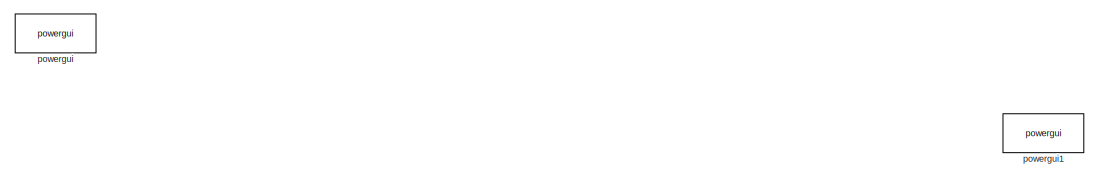
[diagram: root canvas - part 1/2, top left region]
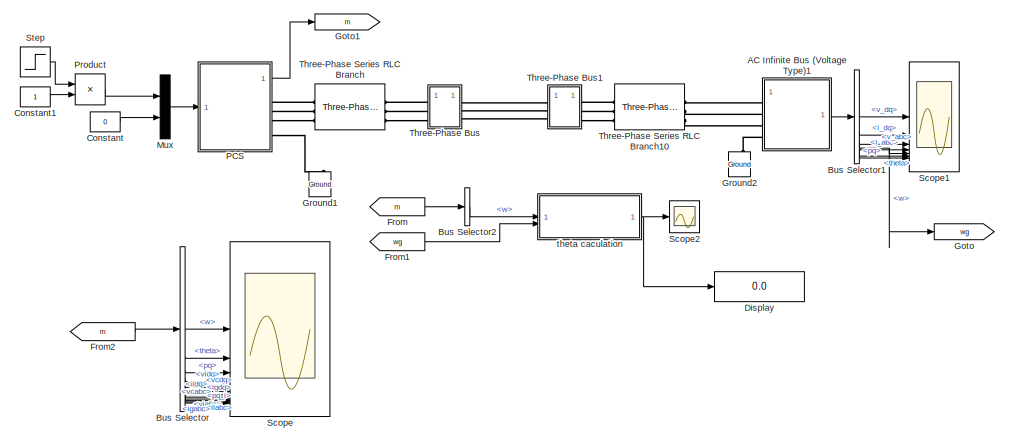
[diagram: root canvas - part 2/2, middle right region]
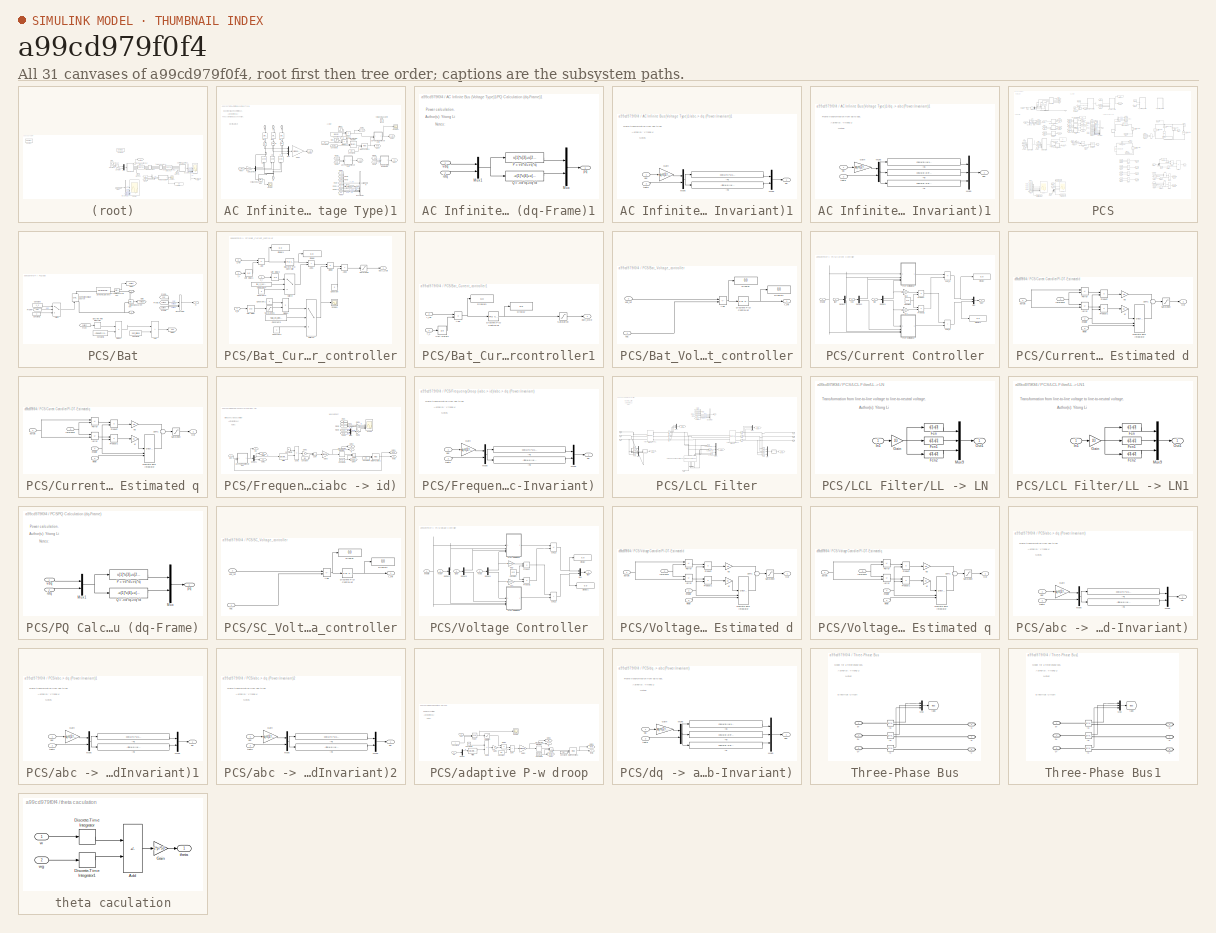
[diagram: thumbnail index - all 31 canvases of the model, root first then tree order]
MODEL slx_a99cd979f0f4
KIND model
CONFIG AbsTol = auto
CONFIG EnableMultiTasking = off
CONFIG FixedStep = auto
CONFIG MaxStep = auto
CONFIG MinStep = auto
CONFIG RelTol = 1e-3
CONFIG SampleTimeConstraint = Unconstrained
CONFIG SolverName = FixedStepAuto
CONFIG StartTime = 0.0
CONFIG StopTime = 3
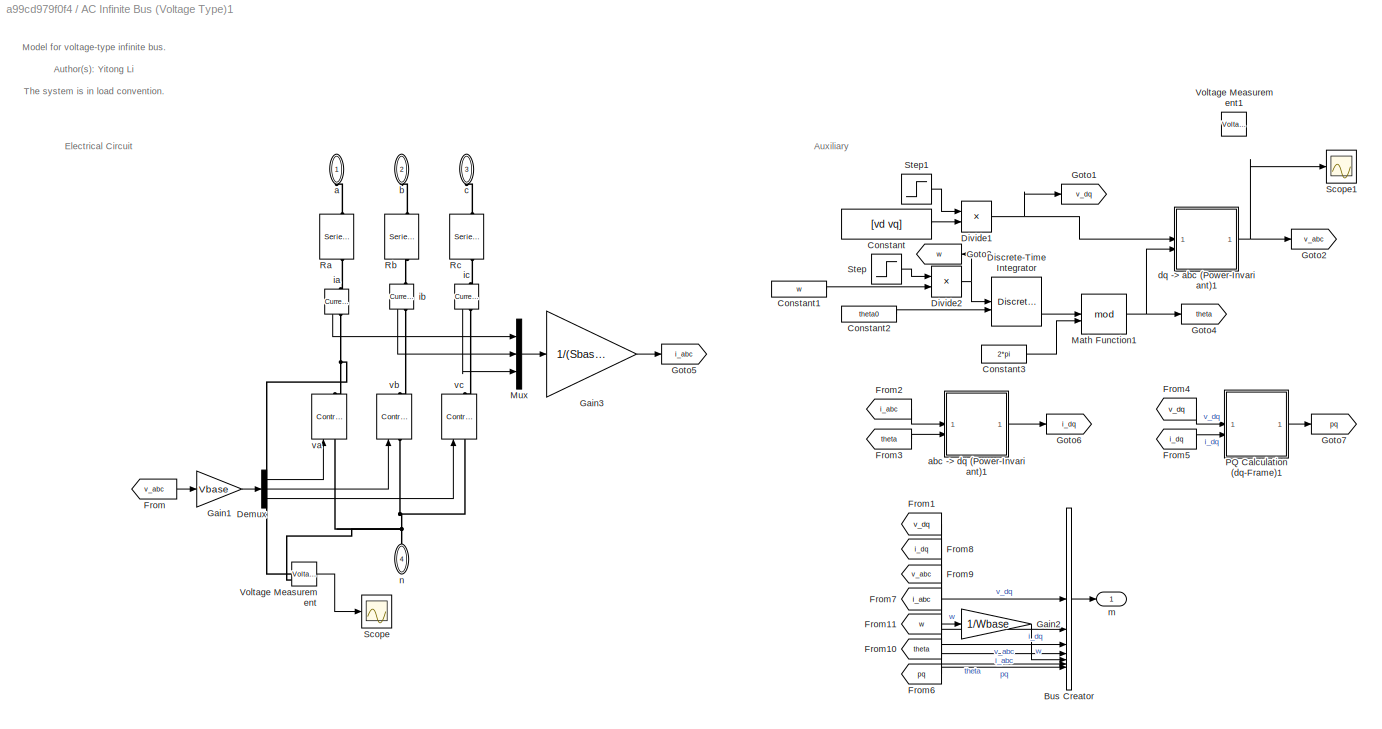
BLOCK [SubSystem] AC Infinite Bus (Voltage Type)1
  AncestorBlock = SimplusGT/AC Infinite Bus\n(Voltage Type)
  LibrarySourceBlock = SimplusGT/AC Infinite Bus\n(Voltage Type)
BLOCK [BusCreator] AC Infinite Bus (Voltage Type)1/Bus Creator
  DisplayOption = bar
  InheritFromInputs = on
  Inputs = 7
BLOCK [Constant] AC Infinite Bus (Voltage Type)1/Constant
  Value = [vd vq]
BLOCK [Constant] AC Infinite Bus (Voltage Type)1/Constant1
  Value = w
BLOCK [Constant] AC Infinite Bus (Voltage Type)1/Constant2
  Value = theta0
BLOCK [Constant] AC Infinite Bus (Voltage Type)1/Constant3
  NameLocation = top
  Value = 2*pi
BLOCK [Demux] AC Infinite Bus (Voltage Type)1/Demux
  Outputs = 3
BLOCK [DiscreteIntegrator] AC Infinite Bus (Voltage Type)1/Discrete-Time Integrator
  ICPrevOutput = DiscIntNeverNeededParam
  ICPrevScaledInput = DiscIntNeverNeededParam
  InitialConditionSetting = Auto
  InitialConditionSource = external
  IntegratorMethod = Integration: Trapezoidal
  SampleTime = -1
BLOCK [Product] AC Infinite Bus (Voltage Type)1/Divide1
  Inputs = **
BLOCK [Product] AC Infinite Bus (Voltage Type)1/Divide2
  Inputs = **
BLOCK [From] AC Infinite Bus (Voltage Type)1/From
  GotoTag = v_abc
BLOCK [From] AC Infinite Bus (Voltage Type)1/From1
  GotoTag = v_dq
BLOCK [From] AC Infinite Bus (Voltage Type)1/From10
  GotoTag = theta
BLOCK [From] AC Infinite Bus (Voltage Type)1/From11
  GotoTag = w
BLOCK [From] AC Infinite Bus (Voltage Type)1/From2
  GotoTag = i_abc
BLOCK [From] AC Infinite Bus (Voltage Type)1/From3
  GotoTag = theta
BLOCK [From] AC Infinite Bus (Voltage Type)1/From4
  GotoTag = v_dq
BLOCK [From] AC Infinite Bus (Voltage Type)1/From5
  GotoTag = i_dq
BLOCK [From] AC Infinite Bus (Voltage Type)1/From6
  GotoTag = pq
BLOCK [From] AC Infinite Bus (Voltage Type)1/From7
  GotoTag = i_abc
BLOCK [From] AC Infinite Bus (Voltage Type)1/From8
  GotoTag = i_dq
BLOCK [From] AC Infinite Bus (Voltage Type)1/From9
  GotoTag = v_abc
BLOCK [Gain] AC Infinite Bus (Voltage Type)1/Gain1
  Gain = Vbase
BLOCK [Gain] AC Infinite Bus (Voltage Type)1/Gain2
  Gain = 1/Wbase
BLOCK [Gain] AC Infinite Bus (Voltage Type)1/Gain3
  Gain = 1/(Sbase/Vbase)
BLOCK [Goto] AC Infinite Bus (Voltage Type)1/Goto1
  GotoTag = v_dq
BLOCK [Goto] AC Infinite Bus (Voltage Type)1/Goto2
  GotoTag = v_abc
BLOCK [Goto] AC Infinite Bus (Voltage Type)1/Goto3
  GotoTag = w
  NameLocation = top
BLOCK [Goto] AC Infinite Bus (Voltage Type)1/Goto4
  GotoTag = theta
BLOCK [Goto] AC Infinite Bus (Voltage Type)1/Goto5
  GotoTag = i_abc
BLOCK [Goto] AC Infinite Bus (Voltage Type)1/Goto6
  GotoTag = i_dq
BLOCK [Goto] AC Infinite Bus (Voltage Type)1/Goto7
  GotoTag = pq
BLOCK [Math] AC Infinite Bus (Voltage Type)1/Math Function1
  Operator = mod
  SignedPower = on
BLOCK [Mux] AC Infinite Bus (Voltage Type)1/Mux
  DisplayOption = bar
  Inputs = 3
BLOCK [SubSystem] AC Infinite Bus (Voltage Type)1/PQ Calculation (dq-Frame)1
  AncestorBlock = SimplusGT/PQ Calculation\n(dq-Frame)
  LibrarySourceBlock = SimplusGT/PQ Calculation\n(dq-Frame)
BLOCK [Mux] AC Infinite Bus (Voltage Type)1/PQ Calculation (dq-Frame)1/Mux
  DisplayOption = bar
  Inputs = 2
BLOCK [Mux] AC Infinite Bus (Voltage Type)1/PQ Calculation (dq-Frame)1/Mux1
  DisplayOption = bar
  Inputs = 2
  NameLocation = top
BLOCK [Fcn] AC Infinite Bus (Voltage Type)1/PQ Calculation (dq-Frame)1/P = vd*id+vq*iq
  Expr = u[1]*u[3]+u[2]*u[4]
  NameLocation = top
BLOCK [Fcn] AC Infinite Bus (Voltage Type)1/PQ Calculation (dq-Frame)1/Q = -vd*iq+vq*id
  Expr = -u[1]*u[4]+u[2]*u[3]
  NameLocation = top
BLOCK [Inport] AC Infinite Bus (Voltage Type)1/PQ Calculation (dq-Frame)1/idq
  NameLocation = top
  Port = 2
BLOCK [Outport] AC Infinite Bus (Voltage Type)1/PQ Calculation (dq-Frame)1/pq
  NameLocation = top
BLOCK [Inport] AC Infinite Bus (Voltage Type)1/PQ Calculation (dq-Frame)1/vdq
  NameLocation = top
BLOCK [Reference] AC Infinite Bus (Voltage Type)1/Ra  REF=spsSeriesRLCBranchLib/Series RLC Branch
  LibrarySourceBlock = sps_lib/Passives/Series RLC Branch
  NameLocation = left
  SourceBlock = spsSeriesRLCBranchLib/Series RLC Branch
  SourceType = Series RLC Branch
BLOCK [Reference] AC Infinite Bus (Voltage Type)1/Rb  REF=spsSeriesRLCBranchLib/Series RLC Branch
  LibrarySourceBlock = sps_lib/Passives/Series RLC Branch
  NameLocation = left
  SourceBlock = spsSeriesRLCBranchLib/Series RLC Branch
  SourceType = Series RLC Branch
BLOCK [Reference] AC Infinite Bus (Voltage Type)1/Rc  REF=spsSeriesRLCBranchLib/Series RLC Branch
  LibrarySourceBlock = sps_lib/Passives/Series RLC Branch
  NameLocation = left
  SourceBlock = spsSeriesRLCBranchLib/Series RLC Branch
  SourceType = Series RLC Branch
BLOCK [Scope] AC Infinite Bus (Voltage Type)1/Scope
  Floating = off
  NumInputPorts = 2
  ScopeSpecificationString = Simulink.scopes.TimeScopeBlockCfg('CurrentConfiguration', extmgr.ConfigurationSet(extmgr.Configuration('Core','General UI',true),extmgr.Configuration('Core','Source UI',true),extmgr.Configuration('Sources','WiredSimulink',true,'DataLoggingVariableName','ScopeData3'),extmgr.Configuration('Visuals','Time Domain',true,'SerializedDisplays',{struct('MinYLimReal','-224.53649','MaxYLimReal','224.53649','...<+2435ch>
BLOCK [Scope] AC Infinite Bus (Voltage Type)1/Scope1
  Floating = off
  NumInputPorts = 2
  ScopeSpecificationString = Simulink.scopes.TimeScopeBlockCfg('CurrentConfiguration', extmgr.ConfigurationSet(extmgr.Configuration('Core','General UI',true),extmgr.Configuration('Core','Source UI',true),extmgr.Configuration('Sources','WiredSimulink',true,'DataLoggingVariableName','ScopeData4'),extmgr.Configuration('Visuals','Time Domain',true,'SerializedDisplays',{struct('MinYLimReal','-1.02062','MaxYLimReal','1.02062','YLab...<+2504ch>
BLOCK [Step] AC Infinite Bus (Voltage Type)1/Step
  Before = 1
  SampleTime = 0
  Time = 2
BLOCK [Step] AC Infinite Bus (Voltage Type)1/Step1
  Before = 1
  SampleTime = 0
  Time = 0.5
BLOCK [Reference] AC Infinite Bus (Voltage Type)1/Voltage Measurement  REF=spsVoltageMeasurementLib/Voltage Measurement
  LibrarySourceBlock = sps_lib/Sensors and Measurements/Voltage Measurement
  SourceBlock = spsVoltageMeasurementLib/Voltage Measurement
  SourceType = Voltage Measurement
  UserDataPersistent = on
BLOCK [Reference] AC Infinite Bus (Voltage Type)1/Voltage Measurement1  REF=spsVoltageMeasurementLib/Voltage Measurement
  LibrarySourceBlock = sps_lib/Sensors and Measurements/Voltage Measurement
  SourceBlock = spsVoltageMeasurementLib/Voltage Measurement
  SourceType = Voltage Measurement
  UserDataPersistent = on
BLOCK [PMIOPort] AC Infinite Bus (Voltage Type)1/a
  NameLocation = left
  Side = Left
BLOCK [SubSystem] AC Infinite Bus (Voltage Type)1/abc -> dq (Power-Invariant)1
  AncestorBlock = SimplusGT/abc -> dq\n(Power-Invariant)
  LibrarySourceBlock = SimplusGT/abc -> dq\n(Power-Invariant)
BLOCK [Fcn] AC Infinite Bus (Voltage Type)1/abc -> dq (Power-Invariant)1/->d
  Expr = cos(u(4))*u(1) + cos(u(4)-2/3*pi)*u(2) + cos(u(4)-4/3*pi)*u(3)
BLOCK [Fcn] AC Infinite Bus (Voltage Type)1/abc -> dq (Power-Invariant)1/->q
  Expr = -sin(u(4))*u(1) - sin(u(4)-2/3*pi)*u(2) - sin(u(4)-4/3*pi)*u(3)
BLOCK [Gain] AC Infinite Bus (Voltage Type)1/abc -> dq (Power-Invariant)1/Gain
  Gain = sqrt(2/3)
BLOCK [Mux] AC Infinite Bus (Voltage Type)1/abc -> dq (Power-Invariant)1/Mux5
  DisplayOption = bar
  Inputs = 2
BLOCK [Mux] AC Infinite Bus (Voltage Type)1/abc -> dq (Power-Invariant)1/Mux6
  DisplayOption = bar
  Inputs = 2
BLOCK [Inport] AC Infinite Bus (Voltage Type)1/abc -> dq (Power-Invariant)1/abc
BLOCK [Outport] AC Infinite Bus (Voltage Type)1/abc -> dq (Power-Invariant)1/dq
BLOCK [Inport] AC Infinite Bus (Voltage Type)1/abc -> dq (Power-Invariant)1/theta
  Port = 2
BLOCK [PMIOPort] AC Infinite Bus (Voltage Type)1/b
  NameLocation = left
  Port = 2
  Side = Left
BLOCK [PMIOPort] AC Infinite Bus (Voltage Type)1/c
  NameLocation = left
  Port = 3
  Side = Left
BLOCK [SubSystem] AC Infinite Bus (Voltage Type)1/dq -> abc (Power-Invariant)1
  AncestorBlock = SimplusGT/dq -> abc\n(Power-Invariant)
  LibrarySourceBlock = SimplusGT/dq -> abc\n(Power-Invariant)
BLOCK [Fcn] AC Infinite Bus (Voltage Type)1/dq -> abc (Power-Invariant)1/->a
  Expr = cos(u(3))*u(1) - sin(u(3))*u(2)
BLOCK [Fcn] AC Infinite Bus (Voltage Type)1/dq -> abc (Power-Invariant)1/->b
  Expr = cos(u(3)-2/3*pi)*u(1) - sin(u(3)-2/3*pi)*u(2)
BLOCK [Fcn] AC Infinite Bus (Voltage Type)1/dq -> abc (Power-Invariant)1/->c
  Expr = cos(u(3)-4/3*pi)*u(1) - sin(u(3)-4/3*pi)*u(2)
BLOCK [Gain] AC Infinite Bus (Voltage Type)1/dq -> abc (Power-Invariant)1/Gain
  Gain = sqrt(2/3)
BLOCK [Mux] AC Infinite Bus (Voltage Type)1/dq -> abc (Power-Invariant)1/Mux5
  DisplayOption = bar
  Inputs = 2
BLOCK [Mux] AC Infinite Bus (Voltage Type)1/dq -> abc (Power-Invariant)1/Mux6
  DisplayOption = bar
  Inputs = 3
BLOCK [Outport] AC Infinite Bus (Voltage Type)1/dq -> abc (Power-Invariant)1/abc
BLOCK [Inport] AC Infinite Bus (Voltage Type)1/dq -> abc (Power-Invariant)1/dq
BLOCK [Inport] AC Infinite Bus (Voltage Type)1/dq -> abc (Power-Invariant)1/theta
  Port = 2
BLOCK [Reference] AC Infinite Bus (Voltage Type)1/ia  REF=spsCurrentMeasurementLib/Current Measurement
  LibrarySourceBlock = sps_lib/Sensors and Measurements/Current Measurement
  NameLocation = left
  SourceBlock = spsCurrentMeasurementLib/Current Measurement
  SourceType = Current Measurement
  UserDataPersistent = on
BLOCK [Reference] AC Infinite Bus (Voltage Type)1/ib  REF=spsCurrentMeasurementLib/Current Measurement
  LibrarySourceBlock = sps_lib/Sensors and Measurements/Current Measurement
  NameLocation = left
  SourceBlock = spsCurrentMeasurementLib/Current Measurement
  SourceType = Current Measurement
  UserDataPersistent = on
BLOCK [Reference] AC Infinite Bus (Voltage Type)1/ic  REF=spsCurrentMeasurementLib/Current Measurement
  LibrarySourceBlock = sps_lib/Sensors and Measurements/Current Measurement
  NameLocation = left
  SourceBlock = spsCurrentMeasurementLib/Current Measurement
  SourceType = Current Measurement
  UserDataPersistent = on
BLOCK [Outport] AC Infinite Bus (Voltage Type)1/m
BLOCK [PMIOPort] AC Infinite Bus (Voltage Type)1/n
  NameLocation = right
  Port = 4
  Side = Left
BLOCK [Reference] AC Infinite Bus (Voltage Type)1/va  REF=spsControlledVoltageSourceLib/Controlled Voltage Source
  LibrarySourceBlock = sps_lib/Sources/Controlled Voltage Source
  NameLocation = right
  SourceBlock = spsControlledVoltageSourceLib/Controlled Voltage Source
  SourceType = Controlled Voltage Source
BLOCK [Reference] AC Infinite Bus (Voltage Type)1/vb  REF=spsControlledVoltageSourceLib/Controlled Voltage Source
  LibrarySourceBlock = sps_lib/Sources/Controlled Voltage Source
  NameLocation = right
  SourceBlock = spsControlledVoltageSourceLib/Controlled Voltage Source
  SourceType = Controlled Voltage Source
BLOCK [Reference] AC Infinite Bus (Voltage Type)1/vc  REF=spsControlledVoltageSourceLib/Controlled Voltage Source
  LibrarySourceBlock = sps_lib/Sources/Controlled Voltage Source
  NameLocation = right
  SourceBlock = spsControlledVoltageSourceLib/Controlled Voltage Source
  SourceType = Controlled Voltage Source
BLOCK [BusSelector] Bus Selector
  OutputSignals = w,theta,pq,vidq,vcdq,ildq,igdq,viabc,vcabc,ilabc,igabc,pq_i
BLOCK [BusSelector] Bus Selector1
  OutputSignals = v_dq,i_dq,v_abc,i_abc,w,theta,pq
BLOCK [BusSelector] Bus Selector2
  OutputSignals = w
BLOCK [Constant] Constant
  Value = 0
BLOCK [Constant] Constant1
BLOCK [Display] Display
  Decimation = 1
BLOCK [From] From
  GotoTag = m
BLOCK [From] From1
  GotoTag = wg
BLOCK [From] From2
  GotoTag = m
BLOCK [Goto] Goto
  GotoTag = wg
BLOCK [Goto] Goto1
  GotoTag = m
BLOCK [Reference] Ground1  REF=spsGroundLib/Ground
  LibrarySourceBlock = sps_lib/Utilities/Ground
  NameLocation = right
  SourceBlock = spsGroundLib/Ground
  SourceType = Ground
BLOCK [Reference] Ground2  REF=spsGroundLib/Ground
  LibrarySourceBlock = sps_lib/Utilities/Ground
  NameLocation = right
  SourceBlock = spsGroundLib/Ground
  SourceType = Ground
BLOCK [Mux] Mux
  DisplayOption = bar
  Inputs = 2
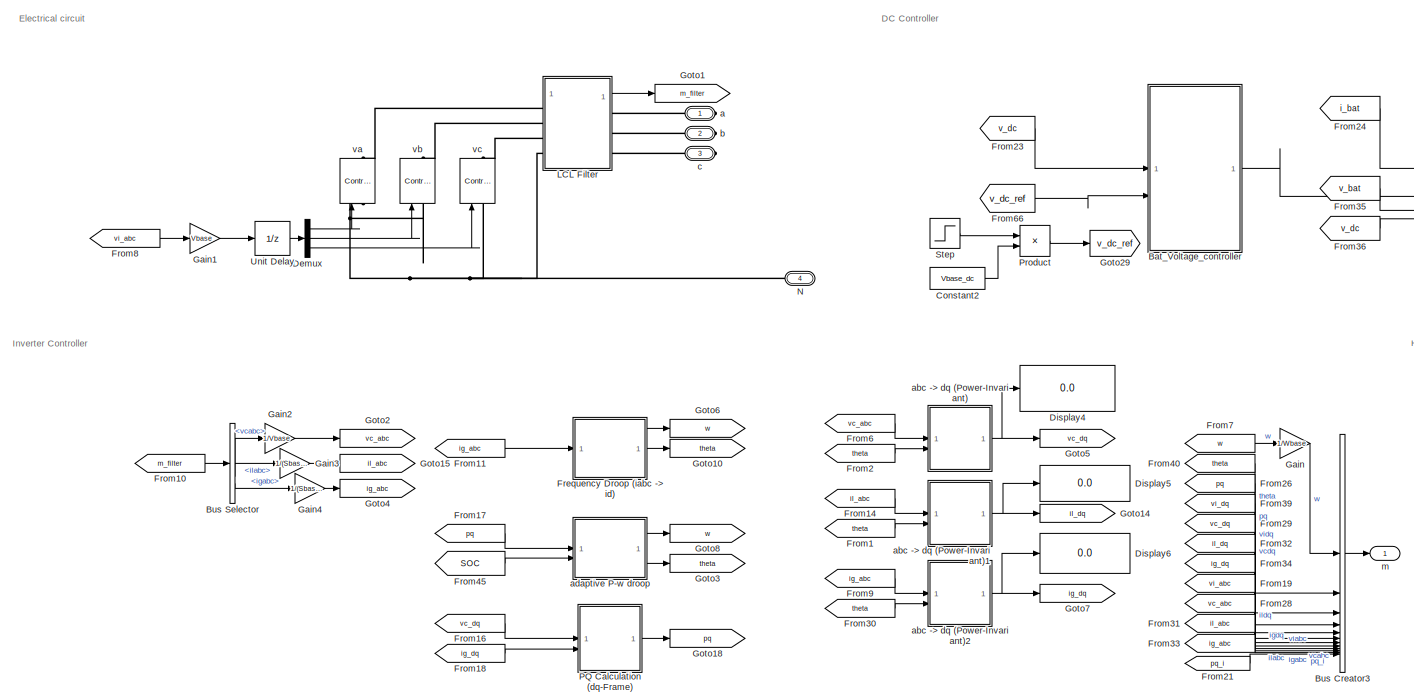
[diagram: PCS - part 1/6, top left region]
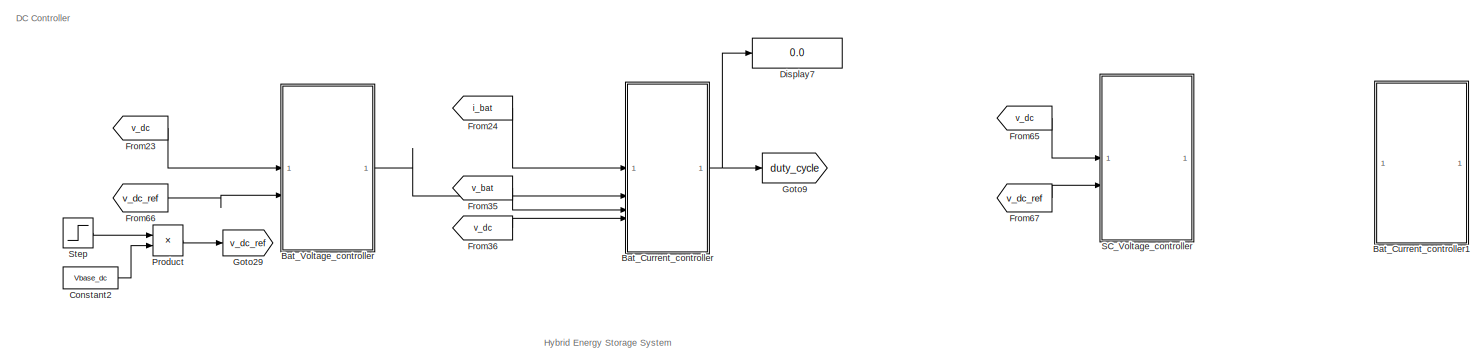
[diagram: PCS - part 2/6, top center region]
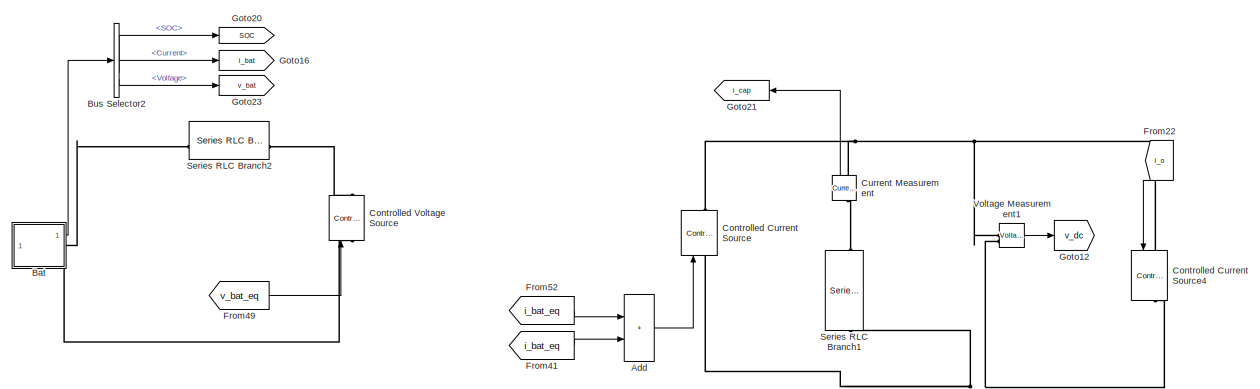
[diagram: PCS - part 3/6, middle right region]
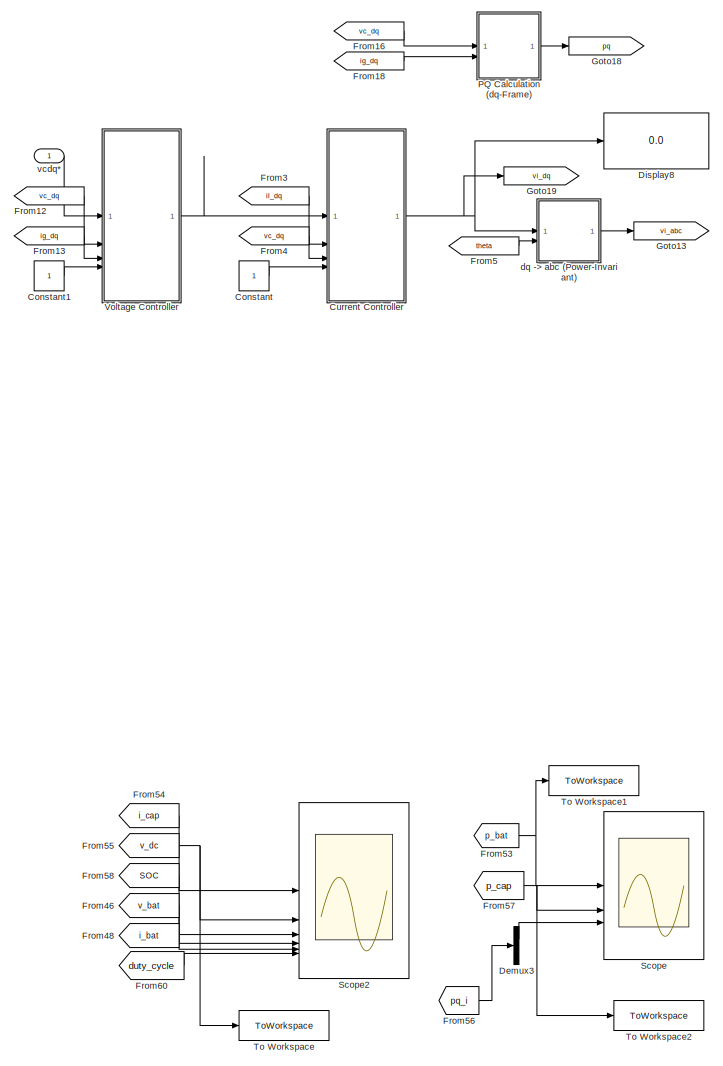
[diagram: PCS - part 4/6, bottom left region]
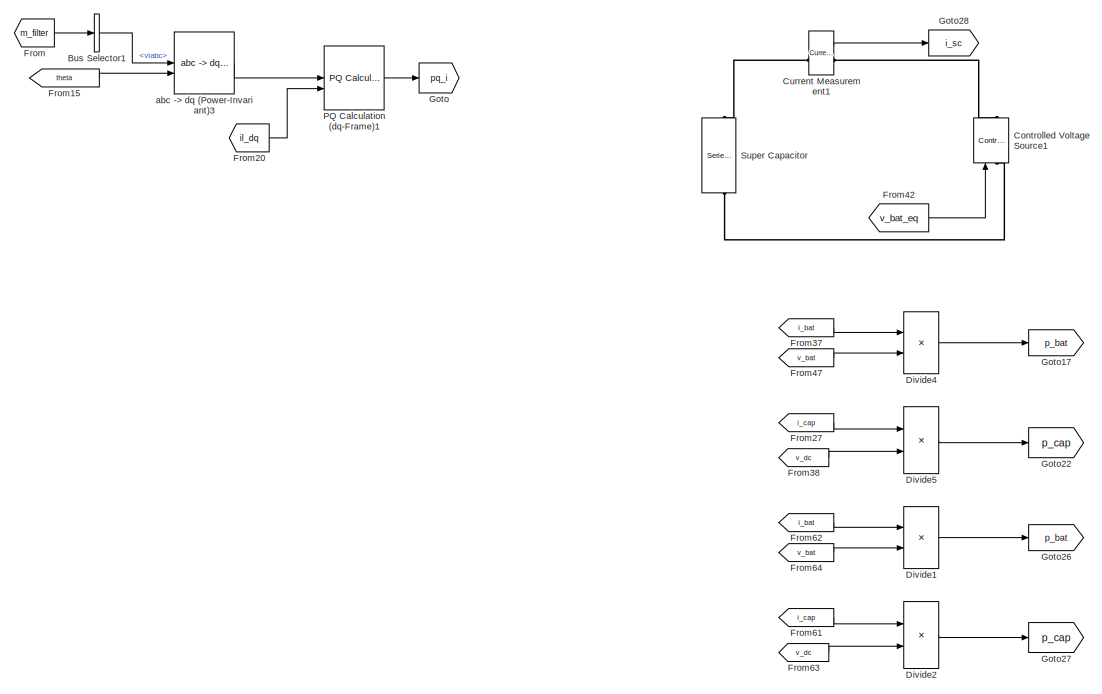
[diagram: PCS - part 5/6, central region]
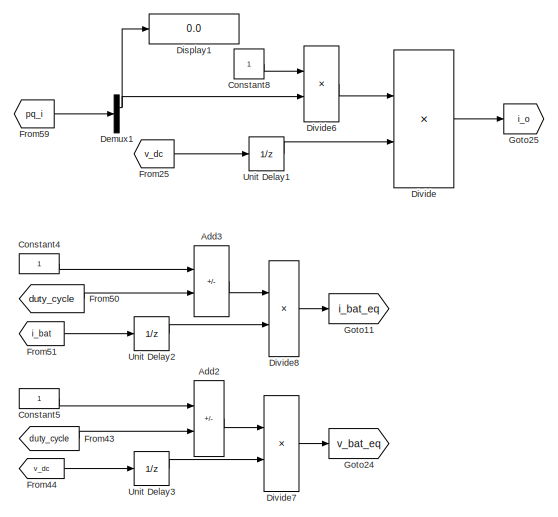
[diagram: PCS - part 6/6, bottom right region]
BLOCK [SubSystem] PCS
  AncestorBlock = SimplusGT/Grid-Forming Inverter\n(Simulink Block)
BLOCK [Sum] PCS/Add
  IconShape = rectangular
BLOCK [Sum] PCS/Add2
  IconShape = rectangular
  Inputs = +-
BLOCK [Sum] PCS/Add3
  IconShape = rectangular
  Inputs = +-
BLOCK [SubSystem] PCS/Bat
BLOCK [PMIOPort] PCS/Bat/+
  NameLocation = top
  Side = Right
BLOCK [PMIOPort] PCS/Bat/-
  NameLocation = top
  Port = 2
  Side = Right
BLOCK [Sum] PCS/Bat/Add
  IconShape = rectangular
BLOCK [BusCreator] PCS/Bat/Bus Creator
  DisplayOption = bar
  InheritFromInputs = on
  Inputs = 3
BLOCK [Constant] PCS/Bat/Constant
  Value = v_n
BLOCK [Constant] PCS/Bat/Constant1
  Value = 0
BLOCK [Constant] PCS/Bat/Constant3
  Value = SOC_init/100
BLOCK [Constant] PCS/Bat/Constant6
  Value = -Capacity*3600
BLOCK [Reference] PCS/Bat/Controlled Voltage Source  REF=spsControlledVoltageSourceLib/Controlled Voltage Source
  LibrarySourceBlock = sps_lib/Sources/Controlled Voltage Source
  SourceBlock = spsControlledVoltageSourceLib/Controlled Voltage Source
  SourceType = Controlled Voltage Source
BLOCK [Reference] PCS/Bat/Current Measurement  REF=spsCurrentMeasurementLib/Current Measurement
  LibrarySourceBlock = sps_lib/Sensors and Measurements/Current Measurement
  SourceBlock = spsCurrentMeasurementLib/Current Measurement
  SourceType = Current Measurement
  UserDataPersistent = on
BLOCK [DiscreteIntegrator] PCS/Bat/Discrete-Time Integrator
  ICPrevOutput = DiscIntNeverNeededParam
  ICPrevScaledInput = DiscIntNeverNeededParam
  InitialConditionSetting = Auto
  SampleTime = -1
BLOCK [Product] PCS/Bat/Divide1
  Inputs = */
BLOCK [From] PCS/Bat/From
  GotoTag = Current
BLOCK [From] PCS/Bat/From1
  GotoTag = SOC
BLOCK [From] PCS/Bat/From2
  GotoTag = Voltage
BLOCK [From] PCS/Bat/From3
  GotoTag = Current
BLOCK [From] PCS/Bat/From4
  GotoTag = SOC
BLOCK [Goto] PCS/Bat/Goto
  GotoTag = Voltage
BLOCK [Goto] PCS/Bat/Goto1
  GotoTag = Current
BLOCK [Goto] PCS/Bat/Goto2
  GotoTag = SOC
BLOCK [Reference] PCS/Bat/Series RLC Branch  REF=spsSeriesRLCBranchLib/Series RLC Branch
  LibrarySourceBlock = sps_lib/Passives/Series RLC Branch
  SourceBlock = spsSeriesRLCBranchLib/Series RLC Branch
  SourceType = Series RLC Branch
BLOCK [Switch] PCS/Bat/Switch
  Criteria = u2 > Threshold
  InputSameDT = off
  SaturateOnIntegerOverflow = off
BLOCK [Reference] PCS/Bat/Voltage Measurement  REF=spsVoltageMeasurementLib/Voltage Measurement
  LibrarySourceBlock = sps_lib/Sensors and Measurements/Voltage Measurement
  SourceBlock = spsVoltageMeasurementLib/Voltage Measurement
  SourceType = Voltage Measurement
  UserDataPersistent = on
BLOCK [Outport] PCS/Bat/m
BLOCK [SubSystem] PCS/Bat_Current_controller
BLOCK [Sum] PCS/Bat_Current_controller/Add
  IconShape = rectangular
  Inputs = +-
BLOCK [Sum] PCS/Bat_Current_controller/Add1
  IconShape = rectangular
BLOCK [Sum] PCS/Bat_Current_controller/Add2
  IconShape = rectangular
BLOCK [Constant] PCS/Bat_Current_controller/Constant
  Value = 0
BLOCK [Constant] PCS/Bat_Current_controller/Constant1
BLOCK [Constant] PCS/Bat_Current_controller/Constant2
  Value = 0
BLOCK [Constant] PCS/Bat_Current_controller/Constant3
BLOCK [Constant] PCS/Bat_Current_controller/Constant4
  Value = flag_vi_decouple
BLOCK [Constant] PCS/Bat_Current_controller/Constant5
  Value = flag_vo_decouple
BLOCK [Reference] PCS/Bat_Current_controller/Discrete PID Controller  REF=slpidlib/PID Controller
  LibrarySourceBlock = simulink/Discrete/Discrete PID Controller
  SourceBlock = slpidlib/PID Controller
  SourceType = PID 1dof
BLOCK [Display] PCS/Bat_Current_controller/Display
  Decimation = 1
BLOCK [Display] PCS/Bat_Current_controller/Display1
  Decimation = 1
BLOCK [Product] PCS/Bat_Current_controller/Divide
  Inputs = **
BLOCK [Product] PCS/Bat_Current_controller/Divide1
  Inputs = */
BLOCK [Saturate] PCS/Bat_Current_controller/Saturation
  LowerLimit = 0
  UpperLimit = 1
BLOCK [Saturate] PCS/Bat_Current_controller/Saturation1
  LowerLimit = 0.1
  UpperLimit = inf
BLOCK [Scope] PCS/Bat_Current_controller/Scope1
  Floating = off
  NumInputPorts = 1
  ScopeSpecificationString = Simulink.scopes.TimeScopeBlockCfg('CurrentConfiguration', extmgr.ConfigurationSet(extmgr.Configuration('Core','General UI',true),extmgr.Configuration('Core','Source UI',true),extmgr.Configuration('Sources','WiredSimulink',true,'DataLoggingVariableName','ScopeData2'),extmgr.Configuration('Visuals','Time Domain',true,'SerializedDisplays',{struct('MinYLimReal','0.00231','MaxYLimReal','0.00419','YLabe...<+1528ch>
BLOCK [Switch] PCS/Bat_Current_controller/Switch
  Criteria = u2 > Threshold
  InputSameDT = off
  SaturateOnIntegerOverflow = off
BLOCK [Switch] PCS/Bat_Current_controller/Switch1
  Criteria = u2 > Threshold
  InputSameDT = off
  SaturateOnIntegerOverflow = off
BLOCK [UnitDelay] PCS/Bat_Current_controller/Unit Delay
  HasFrameUpgradeWarning = on
  InitialCondition = Vbase_dc
  SampleTime = -1
BLOCK [UnitDelay] PCS/Bat_Current_controller/Unit Delay1
  HasFrameUpgradeWarning = on
  InitialCondition = 0.1
  SampleTime = -1
BLOCK [UnitDelay] PCS/Bat_Current_controller/Unit Delay2
  HasFrameUpgradeWarning = on
  InitialCondition = 250
  SampleTime = -1
BLOCK [Outport] PCS/Bat_Current_controller/duty_cycle
BLOCK [Inport] PCS/Bat_Current_controller/i_L
BLOCK [Inport] PCS/Bat_Current_controller/i_ref
  Port = 2
BLOCK [Inport] PCS/Bat_Current_controller/v_i
  Port = 3
BLOCK [Inport] PCS/Bat_Current_controller/v_o
  Port = 4
BLOCK [SubSystem] PCS/Bat_Current_controller1
BLOCK [Sum] PCS/Bat_Current_controller1/Add
  IconShape = rectangular
  Inputs = +-
BLOCK [Reference] PCS/Bat_Current_controller1/Discrete PID Controller  REF=slpidlib/PID Controller
  LibrarySourceBlock = simulink/Discrete/Discrete PID Controller
  SourceBlock = slpidlib/PID Controller
  SourceType = PID 1dof
BLOCK [Display] PCS/Bat_Current_controller1/Display
  Decimation = 1
BLOCK [Display] PCS/Bat_Current_controller1/Display1
  Decimation = 1
BLOCK [Saturate] PCS/Bat_Current_controller1/Saturation
  LowerLimit = 0
  UpperLimit = 1
BLOCK [UnitDelay] PCS/Bat_Current_controller1/Unit Delay1
  HasFrameUpgradeWarning = on
  InitialCondition = 0.1
  SampleTime = -1
BLOCK [Outport] PCS/Bat_Current_controller1/duty_cycle
BLOCK [Inport] PCS/Bat_Current_controller1/i_L
BLOCK [Inport] PCS/Bat_Current_controller1/i_ref
  Port = 2
BLOCK [SubSystem] PCS/Bat_Voltage_controller
BLOCK [Sum] PCS/Bat_Voltage_controller/Add
  IconShape = rectangular
  Inputs = +-
BLOCK [Reference] PCS/Bat_Voltage_controller/Discrete PID Controller  REF=slpidlib/PID Controller
  LibrarySourceBlock = simulink/Discrete/Discrete PID Controller
  SourceBlock = slpidlib/PID Controller
  SourceType = PID 1dof
BLOCK [Display] PCS/Bat_Voltage_controller/Display
  Decimation = 1
BLOCK [Display] PCS/Bat_Voltage_controller/Display1
  Decimation = 1
BLOCK [Outport] PCS/Bat_Voltage_controller/i_ref
BLOCK [Inport] PCS/Bat_Voltage_controller/vdc
BLOCK [Inport] PCS/Bat_Voltage_controller/vdc_ref
  Port = 2
BLOCK [BusCreator] PCS/Bus Creator3
  DisplayOption = bar
  InheritFromInputs = on
  Inputs = 12
BLOCK [BusSelector] PCS/Bus Selector
  OutputSignals = vcabc,ilabc,igabc
BLOCK [BusSelector] PCS/Bus Selector1
  OutputSignals = viabc
BLOCK [BusSelector] PCS/Bus Selector2
  OutputSignals = SOC,Current,Voltage
BLOCK [Constant] PCS/Constant
BLOCK [Constant] PCS/Constant1
BLOCK [Constant] PCS/Constant2
  Value = Vbase_dc
BLOCK [Constant] PCS/Constant4
BLOCK [Constant] PCS/Constant5
BLOCK [Constant] PCS/Constant8
BLOCK [Reference] PCS/Controlled Current Source  REF=spsControlledCurrentSourceLib/Controlled Current Source
  LibrarySourceBlock = sps_lib/Sources/Controlled Current Source
  SourceBlock = spsControlledCurrentSourceLib/Controlled Current Source
  SourceType = Controlled Current Source
BLOCK [Reference] PCS/Controlled Current Source4  REF=spsControlledCurrentSourceLib/Controlled Current Source
  LibrarySourceBlock = sps_lib/Sources/Controlled Current Source
  NameLocation = top
  SourceBlock = spsControlledCurrentSourceLib/Controlled Current Source
  SourceType = Controlled Current Source
BLOCK [Reference] PCS/Controlled Voltage Source  REF=spsControlledVoltageSourceLib/Controlled Voltage Source
  LibrarySourceBlock = sps_lib/Sources/Controlled Voltage Source
  SourceBlock = spsControlledVoltageSourceLib/Controlled Voltage Source
  SourceType = Controlled Voltage Source
BLOCK [Reference] PCS/Controlled Voltage Source1  REF=spsControlledVoltageSourceLib/Controlled Voltage Source
  LibrarySourceBlock = sps_lib/Sources/Controlled Voltage Source
  SourceBlock = spsControlledVoltageSourceLib/Controlled Voltage Source
  SourceType = Controlled Voltage Source
BLOCK [SubSystem] PCS/Current Controller
BLOCK [Constant] PCS/Current Controller/Constant
  Value = Kcd
BLOCK [Demux] PCS/Current Controller/Demux1
  Outputs = 2
BLOCK [Demux] PCS/Current Controller/Demux2
  Outputs = 2
BLOCK [Demux] PCS/Current Controller/Demux3
  Outputs = 2
BLOCK [Display] PCS/Current Controller/Display
  Decimation = 1
BLOCK [Display] PCS/Current Controller/Display1
  Decimation = 1
BLOCK [Mux] PCS/Current Controller/Mux
  DisplayOption = bar
  Inputs = 2
BLOCK [SubSystem] PCS/Current Controller/PI-DT-Estimated d
BLOCK [DiscreteIntegrator] PCS/Current Controller/PI-DT-Estimated d/Discrete-Time Integrator
  ExternalReset = rising
  ICPrevOutput = DiscIntNeverNeededParam
  ICPrevScaledInput = DiscIntNeverNeededParam
  InitialCondition = initial
  InitialConditionSource = external
  LimitOutput = on
  LowerSaturationLimit = xmin
  SampleTime = Ts
  UpperSaturationLimit = xmax
  gainval = 1
BLOCK [Sum] PCS/Current Controller/PI-DT-Estimated d/Ierror
  IconShape = rectangular
  Inputs = +-
BLOCK [Gain] PCS/Current Controller/PI-DT-Estimated d/Ki
  Gain = Ki
  OutDataTypeStr = Inherit: Same as input
  ParamDataTypeStr = Inherit: Same as input
  SaturateOnIntegerOverflow = on
BLOCK [Gain] PCS/Current Controller/PI-DT-Estimated d/Kp
  Gain = Kp
  OutDataTypeStr = Inherit: Same as input
  ParamDataTypeStr = Inherit: Same as input
  SaturateOnIntegerOverflow = on
BLOCK [Outport] PCS/Current Controller/PI-DT-Estimated d/Out
BLOCK [Sum] PCS/Current Controller/PI-DT-Estimated d/Perror
  IconShape = rectangular
  Inputs = -+
BLOCK [Product] PCS/Current Controller/PI-DT-Estimated d/Product
  RndMeth = Zero
BLOCK [Product] PCS/Current Controller/PI-DT-Estimated d/Product1
  RndMeth = Zero
BLOCK [Saturate] PCS/Current Controller/PI-DT-Estimated d/Saturation
  LowerLimit = xmin
  UpperLimit = xmax
BLOCK [Sum] PCS/Current Controller/PI-DT-Estimated d/Sum1
  SaturateOnIntegerOverflow = on
BLOCK [Inport] PCS/Current Controller/PI-DT-Estimated d/actual
  Port = 4
BLOCK [Inport] PCS/Current Controller/PI-DT-Estimated d/enable
BLOCK [Inport] PCS/Current Controller/PI-DT-Estimated d/initial
  Port = 3
BLOCK [Inport] PCS/Current Controller/PI-DT-Estimated d/reference
  Port = 2
BLOCK [SubSystem] PCS/Current Controller/PI-DT-Estimated q
BLOCK [DiscreteIntegrator] PCS/Current Controller/PI-DT-Estimated q/Discrete-Time Integrator
  ExternalReset = rising
  ICPrevOutput = DiscIntNeverNeededParam
  ICPrevScaledInput = DiscIntNeverNeededParam
  InitialCondition = initial
  InitialConditionSource = external
  LimitOutput = on
  LowerSaturationLimit = xmin
  SampleTime = Ts
  UpperSaturationLimit = xmax
  gainval = 1
BLOCK [Sum] PCS/Current Controller/PI-DT-Estimated q/Ierror
  IconShape = rectangular
  Inputs = +-
BLOCK [Gain] PCS/Current Controller/PI-DT-Estimated q/Ki
  Gain = Ki
  OutDataTypeStr = Inherit: Same as input
  ParamDataTypeStr = Inherit: Same as input
  SaturateOnIntegerOverflow = on
BLOCK [Gain] PCS/Current Controller/PI-DT-Estimated q/Kp
  Gain = Kp
  OutDataTypeStr = Inherit: Same as input
  ParamDataTypeStr = Inherit: Same as input
  SaturateOnIntegerOverflow = on
BLOCK [Outport] PCS/Current Controller/PI-DT-Estimated q/Out
BLOCK [Sum] PCS/Current Controller/PI-DT-Estimated q/Perror
  IconShape = rectangular
  Inputs = -+
BLOCK [Product] PCS/Current Controller/PI-DT-Estimated q/Product
  RndMeth = Zero
BLOCK [Product] PCS/Current Controller/PI-DT-Estimated q/Product1
  RndMeth = Zero
BLOCK [Saturate] PCS/Current Controller/PI-DT-Estimated q/Saturation
  LowerLimit = xmin
  UpperLimit = xmax
BLOCK [Sum] PCS/Current Controller/PI-DT-Estimated q/Sum1
  SaturateOnIntegerOverflow = on
BLOCK [Inport] PCS/Current Controller/PI-DT-Estimated q/actual
BLOCK [Inport] PCS/Current Controller/PI-DT-Estimated q/enable
  Port = 4
BLOCK [Inport] PCS/Current Controller/PI-DT-Estimated q/initial
  Port = 2
BLOCK [Inport] PCS/Current Controller/PI-DT-Estimated q/reference
  Port = 3
BLOCK [Product] PCS/Current Controller/Product
BLOCK [Product] PCS/Current Controller/Product1
BLOCK [Inport] PCS/Current Controller/enable
  Port = 4
BLOCK [Inport] PCS/Current Controller/iIdq
  Port = 2
BLOCK [Inport] PCS/Current Controller/iIdq*
BLOCK [Sum] PCS/Current Controller/sum_d
  IconShape = rectangular
  Inputs = +-
BLOCK [Sum] PCS/Current Controller/sum_q
  IconShape = rectangular
BLOCK [Inport] PCS/Current Controller/vdq
  Port = 3
BLOCK [Outport] PCS/Current Controller/vidq*
BLOCK [Gain] PCS/Current Controller/wLd
  Gain = Wbase*Lf
BLOCK [Gain] PCS/Current Controller/wLq
  Gain = Wbase*Lf
BLOCK [Reference] PCS/Current Measurement  REF=spsCurrentMeasurementLib/Current Measurement
  LibrarySourceBlock = sps_lib/Sensors and Measurements/Current Measurement
  NameLocation = right
  SourceBlock = spsCurrentMeasurementLib/Current Measurement
  SourceType = Current Measurement
  UserDataPersistent = on
BLOCK [Reference] PCS/Current Measurement1  REF=spsCurrentMeasurementLib/Current Measurement
  LibrarySourceBlock = sps_lib/Sensors and Measurements/Current Measurement
  SourceBlock = spsCurrentMeasurementLib/Current Measurement
  SourceType = Current Measurement
  UserDataPersistent = on
BLOCK [Demux] PCS/Demux
  Outputs = 3
BLOCK [Demux] PCS/Demux1
  Outputs = 2
BLOCK [Demux] PCS/Demux3
  Outputs = 2
BLOCK [Display] PCS/Display1
  Decimation = 1
BLOCK [Display] PCS/Display4
  Decimation = 2
BLOCK [Display] PCS/Display5
  Decimation = 2
BLOCK [Display] PCS/Display6
  Decimation = 2
BLOCK [Display] PCS/Display7
  Decimation = 1
BLOCK [Display] PCS/Display8
  Decimation = 2
BLOCK [Product] PCS/Divide
  Inputs = */
BLOCK [Product] PCS/Divide1
  Inputs = **
BLOCK [Product] PCS/Divide2
  Inputs = **
BLOCK [Product] PCS/Divide4
  Inputs = **
BLOCK [Product] PCS/Divide5
  Inputs = **
BLOCK [Product] PCS/Divide6
  Inputs = **
BLOCK [Product] PCS/Divide7
  Inputs = **
BLOCK [Product] PCS/Divide8
  Inputs = **
BLOCK [SubSystem] PCS/Frequency Droop (iabc -> id)
  AncestorBlock = SimplusGT/Frequency Droop\n(iabc -> id)
  Commented = on
BLOCK [Constant] PCS/Frequency Droop (iabc -> id)/Constant
  Value = w0
BLOCK [Constant] PCS/Frequency Droop (iabc -> id)/Constant2
  Value = theta0
BLOCK [Constant] PCS/Frequency Droop (iabc -> id)/Constant4
  NameLocation = top
  Value = 2*pi
BLOCK [Constant] PCS/Frequency Droop (iabc -> id)/Constant6
  Value = i0
BLOCK [Demux] PCS/Frequency Droop (iabc -> id)/Demux1
  Outputs = 2
BLOCK [DiscreteIntegrator] PCS/Frequency Droop (iabc -> id)/Discrete-Time Integrator
  ICPrevOutput = DiscIntNeverNeededParam
  ICPrevScaledInput = DiscIntNeverNeededParam
  SampleTime = Ts
BLOCK [DiscreteTransferFcn] PCS/Frequency Droop (iabc -> id)/Filter p
  Denominator = [1 ((w_tau*Ts)-1)]
  InputPortMap = u0
  Numerator = w_tau*Ts
  SampleTime = Ts
BLOCK [From] PCS/Frequency Droop (iabc -> id)/From
  GotoTag = id
BLOCK [From] PCS/Frequency Droop (iabc -> id)/From1
  GotoTag = iq
BLOCK [From] PCS/Frequency Droop (iabc -> id)/From2
  GotoTag = w
BLOCK [From] PCS/Frequency Droop (iabc -> id)/From3
  GotoTag = theta
BLOCK [From] PCS/Frequency Droop (iabc -> id)/From4
  GotoTag = theta0
BLOCK [Gain] PCS/Frequency Droop (iabc -> id)/Gain2
  Gain = m
BLOCK [Gain] PCS/Frequency Droop (iabc -> id)/Gain3
  Gain = Wbase
BLOCK [Gain] PCS/Frequency Droop (iabc -> id)/Gain4
  Gain = 1/Wbase
BLOCK [Gain] PCS/Frequency Droop (iabc -> id)/Gain5
  Gain = 1/pi
BLOCK [Goto] PCS/Frequency Droop (iabc -> id)/Goto
  GotoTag = id
BLOCK [Goto] PCS/Frequency Droop (iabc -> id)/Goto1
  GotoTag = iq
BLOCK [Goto] PCS/Frequency Droop (iabc -> id)/Goto2
  GotoTag = w
BLOCK [Goto] PCS/Frequency Droop (iabc -> id)/Goto3
  GotoTag = theta
BLOCK [Goto] PCS/Frequency Droop (iabc -> id)/Goto4
  GotoTag = theta0
BLOCK [Math] PCS/Frequency Droop (iabc -> id)/Math Function1
  Operator = mod
  SignedPower = on
BLOCK [Mux] PCS/Frequency Droop (iabc -> id)/Mux
  DisplayOption = bar
  Inputs = 2
BLOCK [Scope] PCS/Frequency Droop (iabc -> id)/Scope
  Floating = off
  NumInputPorts = 4
  ScopeSpecificationString = C++SS(StrPVP('Open','off'),StrPVP('TimeRange','auto'),StrPVP('TickLabels','OneTimeTick'),StrPVP('ShowLegends','off'),StrPVP('LimitDataPoints','off'),StrPVP('MaxDataPoints','5000'),StrPVP('SaveToWorkspace','off'),StrPVP('SaveName','ScopeData1'),StrPVP('YMin','-0.01955~-0.01955~-0.01955~-0.01955'),StrPVP('YMax','0.17599~0.17599~0.17599~0.17599'),StrPVP('BlockParamSampleInput','off'),StrPVP('BlockPar...<+723ch>
BLOCK [Sum] PCS/Frequency Droop (iabc -> id)/Sum
  IconShape = rectangular
BLOCK [Sum] PCS/Frequency Droop (iabc -> id)/Sum1
  IconShape = rectangular
BLOCK [Sum] PCS/Frequency Droop (iabc -> id)/Sum2
  IconShape = rectangular
  Inputs = +-
BLOCK [SubSystem] PCS/Frequency Droop (iabc -> id)/abc -> dq (Power-Invariant)
  AncestorBlock = SimplusGT/abc -> dq\n(Power-Invariant)
BLOCK [Fcn] PCS/Frequency Droop (iabc -> id)/abc -> dq (Power-Invariant)/->d
  Expr = cos(u(4))*u(1) + cos(u(4)-2/3*pi)*u(2) + cos(u(4)-4/3*pi)*u(3)
BLOCK [Fcn] PCS/Frequency Droop (iabc -> id)/abc -> dq (Power-Invariant)/->q
  Expr = -sin(u(4))*u(1) - sin(u(4)-2/3*pi)*u(2) - sin(u(4)-4/3*pi)*u(3)
BLOCK [Gain] PCS/Frequency Droop (iabc -> id)/abc -> dq (Power-Invariant)/Gain
  Gain = sqrt(2/3)
BLOCK [Mux] PCS/Frequency Droop (iabc -> id)/abc -> dq (Power-Invariant)/Mux5
  DisplayOption = bar
  Inputs = 2
BLOCK [Mux] PCS/Frequency Droop (iabc -> id)/abc -> dq (Power-Invariant)/Mux6
  DisplayOption = bar
  Inputs = 2
BLOCK [Inport] PCS/Frequency Droop (iabc -> id)/abc -> dq (Power-Invariant)/abc
BLOCK [Outport] PCS/Frequency Droop (iabc -> id)/abc -> dq (Power-Invariant)/dq
BLOCK [Inport] PCS/Frequency Droop (iabc -> id)/abc -> dq (Power-Invariant)/theta
  Port = 2
BLOCK [Inport] PCS/Frequency Droop (iabc -> id)/iabc
BLOCK [Outport] PCS/Frequency Droop (iabc -> id)/idq
  Port = 3
BLOCK [Outport] PCS/Frequency Droop (iabc -> id)/theta
  Port = 2
BLOCK [Outport] PCS/Frequency Droop (iabc -> id)/w
BLOCK [From] PCS/From
  GotoTag = m_filter
BLOCK [From] PCS/From1
  CloseFcn = tagdialog Close
  GotoTag = theta
  NameLocation = top
BLOCK [From] PCS/From10
  CloseFcn = tagdialog Close
  GotoTag = m_filter
  NameLocation = top
BLOCK [From] PCS/From11
  CloseFcn = tagdialog Close
  Commented = on
  GotoTag = ig_abc
  NameLocation = top
BLOCK [From] PCS/From12
  CloseFcn = tagdialog Close
  GotoTag = vc_dq
  NameLocation = top
BLOCK [From] PCS/From13
  CloseFcn = tagdialog Close
  GotoTag = ig_dq
  NameLocation = top
BLOCK [From] PCS/From14
  CloseFcn = tagdialog Close
  GotoTag = il_abc
  NameLocation = top
BLOCK [From] PCS/From15
  GotoTag = theta
BLOCK [From] PCS/From16
  CloseFcn = tagdialog Close
  GotoTag = vc_dq
  NameLocation = top
BLOCK [From] PCS/From17
  CloseFcn = tagdialog Close
  GotoTag = pq
  NameLocation = top
BLOCK [From] PCS/From18
  CloseFcn = tagdialog Close
  GotoTag = ig_dq
  NameLocation = top
BLOCK [From] PCS/From19
  CloseFcn = tagdialog Close
  GotoTag = vi_abc
  NameLocation = top
BLOCK [From] PCS/From2
  CloseFcn = tagdialog Close
  GotoTag = theta
  NameLocation = top
BLOCK [From] PCS/From20
  GotoTag = il_dq
BLOCK [From] PCS/From21
  GotoTag = pq_i
BLOCK [From] PCS/From22
  GotoTag = i_o
  NameLocation = left
BLOCK [From] PCS/From23
  GotoTag = v_dc
BLOCK [From] PCS/From24
  GotoTag = i_bat
BLOCK [From] PCS/From25
  GotoTag = v_dc
BLOCK [From] PCS/From26
  CloseFcn = tagdialog Close
  GotoTag = pq
  NameLocation = top
BLOCK [From] PCS/From27
  GotoTag = i_cap
BLOCK [From] PCS/From28
  CloseFcn = tagdialog Close
  GotoTag = vc_abc
  NameLocation = top
BLOCK [From] PCS/From29
  CloseFcn = tagdialog Close
  GotoTag = vc_dq
  NameLocation = top
BLOCK [From] PCS/From3
  CloseFcn = tagdialog Close
  GotoTag = il_dq
  NameLocation = top
BLOCK [From] PCS/From30
  CloseFcn = tagdialog Close
  GotoTag = theta
  NameLocation = top
BLOCK [From] PCS/From31
  CloseFcn = tagdialog Close
  GotoTag = il_abc
  NameLocation = top
BLOCK [From] PCS/From32
  CloseFcn = tagdialog Close
  GotoTag = il_dq
  NameLocation = top
BLOCK [From] PCS/From33
  CloseFcn = tagdialog Close
  GotoTag = ig_abc
  NameLocation = top
BLOCK [From] PCS/From34
  CloseFcn = tagdialog Close
  GotoTag = ig_dq
  NameLocation = top
BLOCK [From] PCS/From35
  GotoTag = v_bat
BLOCK [From] PCS/From36
  GotoTag = v_dc
BLOCK [From] PCS/From37
  GotoTag = i_bat
BLOCK [From] PCS/From38
  GotoTag = v_dc
BLOCK [From] PCS/From39
  CloseFcn = tagdialog Close
  GotoTag = vi_dq
  NameLocation = top
BLOCK [From] PCS/From4
  CloseFcn = tagdialog Close
  GotoTag = vc_dq
  NameLocation = top
BLOCK [From] PCS/From40
  CloseFcn = tagdialog Close
  GotoTag = theta
  NameLocation = top
BLOCK [From] PCS/From41
  GotoTag = i_bat_eq
BLOCK [From] PCS/From42
  GotoTag = v_bat_eq
BLOCK [From] PCS/From43
  GotoTag = duty_cycle
BLOCK [From] PCS/From44
  GotoTag = v_dc
BLOCK [From] PCS/From45
  GotoTag = SOC
BLOCK [From] PCS/From46
  GotoTag = v_bat
BLOCK [From] PCS/From47
  GotoTag = v_bat
BLOCK [From] PCS/From48
  GotoTag = i_bat
BLOCK [From] PCS/From49
  GotoTag = v_bat_eq
BLOCK [From] PCS/From5
  CloseFcn = tagdialog Close
  GotoTag = theta
  NameLocation = top
BLOCK [From] PCS/From50
  GotoTag = duty_cycle
BLOCK [From] PCS/From51
  GotoTag = i_bat
BLOCK [From] PCS/From52
  GotoTag = i_bat_eq
BLOCK [From] PCS/From53
  GotoTag = p_bat
BLOCK [From] PCS/From54
  GotoTag = i_cap
BLOCK [From] PCS/From55
  GotoTag = v_dc
BLOCK [From] PCS/From56
  GotoTag = pq_i
BLOCK [From] PCS/From57
  GotoTag = p_cap
BLOCK [From] PCS/From58
  GotoTag = SOC
BLOCK [From] PCS/From59
  GotoTag = pq_i
BLOCK [From] PCS/From6
  CloseFcn = tagdialog Close
  GotoTag = vc_abc
  NameLocation = top
BLOCK [From] PCS/From60
  GotoTag = duty_cycle
BLOCK [From] PCS/From61
  GotoTag = i_cap
BLOCK [From] PCS/From62
  GotoTag = i_bat
BLOCK [From] PCS/From63
  GotoTag = v_dc
BLOCK [From] PCS/From64
  GotoTag = v_bat
BLOCK [From] PCS/From65
  GotoTag = v_dc
BLOCK [From] PCS/From66
  GotoTag = v_dc_ref
BLOCK [From] PCS/From67
  GotoTag = v_dc_ref
BLOCK [From] PCS/From7
  CloseFcn = tagdialog Close
  GotoTag = w
  NameLocation = top
BLOCK [From] PCS/From8
  CloseFcn = tagdialog Close
  GotoTag = vi_abc
  NameLocation = top
BLOCK [From] PCS/From9
  CloseFcn = tagdialog Close
  GotoTag = ig_abc
  NameLocation = top
BLOCK [Gain] PCS/Gain
  Gain = 1/Wbase
BLOCK [Gain] PCS/Gain1
  Gain = Vbase
BLOCK [Gain] PCS/Gain2
  Gain = 1/Vbase
BLOCK [Gain] PCS/Gain3
  Gain = 1/(Sbase/Vbase)
BLOCK [Gain] PCS/Gain4
  Gain = 1/(Sbase/Vbase)
BLOCK [Goto] PCS/Goto
  GotoTag = pq_i
BLOCK [Goto] PCS/Goto1
  GotoTag = m_filter
BLOCK [Goto] PCS/Goto10
  Commented = on
  GotoTag = theta
BLOCK [Goto] PCS/Goto11
  GotoTag = i_bat_eq
BLOCK [Goto] PCS/Goto12
  GotoTag = v_dc
BLOCK [Goto] PCS/Goto13
  GotoTag = vi_abc
BLOCK [Goto] PCS/Goto14
  GotoTag = il_dq
BLOCK [Goto] PCS/Goto15
  GotoTag = il_abc
BLOCK [Goto] PCS/Goto16
  GotoTag = i_bat
BLOCK [Goto] PCS/Goto17
  GotoTag = p_bat
BLOCK [Goto] PCS/Goto18
  GotoTag = pq
BLOCK [Goto] PCS/Goto19
  GotoTag = vi_dq
BLOCK [Goto] PCS/Goto2
  GotoTag = vc_abc
BLOCK [Goto] PCS/Goto20
  GotoTag = SOC
BLOCK [Goto] PCS/Goto21
  GotoTag = i_cap
  NameLocation = top
BLOCK [Goto] PCS/Goto22
  GotoTag = p_cap
BLOCK [Goto] PCS/Goto23
  GotoTag = v_bat
BLOCK [Goto] PCS/Goto24
  GotoTag = v_bat_eq
BLOCK [Goto] PCS/Goto25
  GotoTag = i_o
BLOCK [Goto] PCS/Goto26
  GotoTag = p_bat
BLOCK [Goto] PCS/Goto27
  GotoTag = p_cap
BLOCK [Goto] PCS/Goto28
  GotoTag = i_sc
BLOCK [Goto] PCS/Goto29
  GotoTag = v_dc_ref
BLOCK [Goto] PCS/Goto3
  GotoTag = theta
BLOCK [Goto] PCS/Goto4
  GotoTag = ig_abc
BLOCK [Goto] PCS/Goto5
  GotoTag = vc_dq
BLOCK [Goto] PCS/Goto6
  Commented = on
  GotoTag = w
BLOCK [Goto] PCS/Goto7
  GotoTag = ig_dq
BLOCK [Goto] PCS/Goto8
  GotoTag = w
BLOCK [Goto] PCS/Goto9
  GotoTag = duty_cycle
BLOCK [SubSystem] PCS/LCL Filter
BLOCK [BusCreator] PCS/LCL Filter/Bus Creator
  DisplayOption = bar
  InheritFromInputs = on
  Inputs = 5
BLOCK [From] PCS/LCL Filter/From
  GotoTag = ilabc
BLOCK [From] PCS/LCL Filter/From1
  GotoTag = igabc
BLOCK [From] PCS/LCL Filter/From2
  GotoTag = viabc
BLOCK [From] PCS/LCL Filter/From3
  GotoTag = vcabc
BLOCK [From] PCS/LCL Filter/From4
  GotoTag = vgabc
BLOCK [Goto] PCS/LCL Filter/Goto
  GotoTag = ilabc
BLOCK [Goto] PCS/LCL Filter/Goto1
  GotoTag = igabc
BLOCK [Goto] PCS/LCL Filter/Goto2
  GotoTag = vgabc
BLOCK [Goto] PCS/LCL Filter/Goto3
  GotoTag = vcabc
BLOCK [Goto] PCS/LCL Filter/Goto4
  GotoTag = viabc
BLOCK [SubSystem] PCS/LCL Filter/LL -> LN
  AncestorBlock = SimplusGT/LL -> LN
BLOCK [Fcn] PCS/LCL Filter/LL -> LN/Fcn
  Expr = u[1]-u[3]
BLOCK [Fcn] PCS/LCL Filter/LL -> LN/Fcn1
  Expr = u[2]-u[1]
BLOCK [Fcn] PCS/LCL Filter/LL -> LN/Fcn2
  Expr = u[3]-u[2]
BLOCK [Gain] PCS/LCL Filter/LL -> LN/Gain
  Gain = 1/3
BLOCK [Inport] PCS/LCL Filter/LL -> LN/In1
BLOCK [Mux] PCS/LCL Filter/LL -> LN/Mux9
  DisplayOption = bar
  Inputs = 3
BLOCK [Outport] PCS/LCL Filter/LL -> LN/Out1
BLOCK [SubSystem] PCS/LCL Filter/LL -> LN1
  AncestorBlock = SimplusGT/Grid-Forming Inverter\n(Simulink Block)/LCL Filter/LL -> LN
BLOCK [Fcn] PCS/LCL Filter/LL -> LN1/Fcn
  Expr = u[1]-u[3]
BLOCK [Fcn] PCS/LCL Filter/LL -> LN1/Fcn1
  Expr = u[2]-u[1]
BLOCK [Fcn] PCS/LCL Filter/LL -> LN1/Fcn2
  Expr = u[3]-u[2]
BLOCK [Gain] PCS/LCL Filter/LL -> LN1/Gain
  Gain = 1/3
BLOCK [Inport] PCS/LCL Filter/LL -> LN1/In1
BLOCK [Mux] PCS/LCL Filter/LL -> LN1/Mux9
  DisplayOption = bar
  Inputs = 3
BLOCK [Outport] PCS/LCL Filter/LL -> LN1/Out1
BLOCK [Mux] PCS/LCL Filter/Mux
  DisplayOption = bar
  Inputs = 3
BLOCK [Mux] PCS/LCL Filter/Mux1
  DisplayOption = bar
  Inputs = 3
BLOCK [Mux] PCS/LCL Filter/Mux2
  DisplayOption = bar
  Inputs = 3
BLOCK [Mux] PCS/LCL Filter/Mux3
  DisplayOption = bar
  Inputs = 3
BLOCK [Mux] PCS/LCL Filter/Mux4
  DisplayOption = bar
  Inputs = 3
BLOCK [PMIOPort] PCS/LCL Filter/N
  Port = 7
  Side = Left
BLOCK [Reference] PCS/LCL Filter/Three-Phase Series RLC Branch  REF=spsThreePhaseSeriesRLCBranchLib/Three-Phase
Series RLC Branch
  AttributesFormatString = \n
  LibrarySourceBlock = sps_lib/Passives/Three-Phase\nSeries RLC Branch
  SourceBlock = spsThreePhaseSeriesRLCBranchLib/Three-Phase\nSeries RLC Branch
  SourceType = Three-Phase Series RLC Branch
BLOCK [Reference] PCS/LCL Filter/Three-Phase Series RLC Branch1  REF=spsThreePhaseSeriesRLCBranchLib/Three-Phase
Series RLC Branch
  AttributesFormatString = \n
  LibrarySourceBlock = sps_lib/Passives/Three-Phase\nSeries RLC Branch
  SourceBlock = spsThreePhaseSeriesRLCBranchLib/Three-Phase\nSeries RLC Branch
  SourceType = Three-Phase Series RLC Branch
BLOCK [Reference] PCS/LCL Filter/Three-Phase Series RLC Branch2  REF=spsThreePhaseSeriesRLCBranchLib/Three-Phase
Series RLC Branch
  AttributesFormatString = \n
  LibrarySourceBlock = sps_lib/Passives/Three-Phase\nSeries RLC Branch
  NameLocation = left
  SourceBlock = spsThreePhaseSeriesRLCBranchLib/Three-Phase\nSeries RLC Branch
  SourceType = Three-Phase Series RLC Branch
BLOCK [Reference] PCS/LCL Filter/Vab  REF=spsVoltageMeasurementLib/Voltage Measurement
  LibrarySourceBlock = sps_lib/Sensors and Measurements/Voltage Measurement
  SourceBlock = spsVoltageMeasurementLib/Voltage Measurement
  SourceType = Voltage Measurement
BLOCK [Reference] PCS/LCL Filter/Vab1  REF=spsVoltageMeasurementLib/Voltage Measurement
  LibrarySourceBlock = sps_lib/Sensors and Measurements/Voltage Measurement
  SourceBlock = spsVoltageMeasurementLib/Voltage Measurement
  SourceType = Voltage Measurement
BLOCK [Reference] PCS/LCL Filter/Vbc  REF=spsVoltageMeasurementLib/Voltage Measurement
  LibrarySourceBlock = sps_lib/Sensors and Measurements/Voltage Measurement
  SourceBlock = spsVoltageMeasurementLib/Voltage Measurement
  SourceType = Voltage Measurement
BLOCK [Reference] PCS/LCL Filter/Vbc1  REF=spsVoltageMeasurementLib/Voltage Measurement
  LibrarySourceBlock = sps_lib/Sensors and Measurements/Voltage Measurement
  SourceBlock = spsVoltageMeasurementLib/Voltage Measurement
  SourceType = Voltage Measurement
BLOCK [Reference] PCS/LCL Filter/Vca  REF=spsVoltageMeasurementLib/Voltage Measurement
  LibrarySourceBlock = sps_lib/Sensors and Measurements/Voltage Measurement
  SourceBlock = spsVoltageMeasurementLib/Voltage Measurement
  SourceType = Voltage Measurement
BLOCK [Reference] PCS/LCL Filter/Vca1  REF=spsVoltageMeasurementLib/Voltage Measurement
  LibrarySourceBlock = sps_lib/Sensors and Measurements/Voltage Measurement
  SourceBlock = spsVoltageMeasurementLib/Voltage Measurement
  SourceType = Voltage Measurement
BLOCK [Reference] PCS/LCL Filter/iga  REF=spsCurrentMeasurementLib/Current Measurement
  LibrarySourceBlock = sps_lib/Sensors and Measurements/Current Measurement
  SourceBlock = spsCurrentMeasurementLib/Current Measurement
  SourceType = Current Measurement
BLOCK [Reference] PCS/LCL Filter/igb  REF=spsCurrentMeasurementLib/Current Measurement
  LibrarySourceBlock = sps_lib/Sensors and Measurements/Current Measurement
  SourceBlock = spsCurrentMeasurementLib/Current Measurement
  SourceType = Current Measurement
BLOCK [Reference] PCS/LCL Filter/igc  REF=spsCurrentMeasurementLib/Current Measurement
  LibrarySourceBlock = sps_lib/Sensors and Measurements/Current Measurement
  SourceBlock = spsCurrentMeasurementLib/Current Measurement
  SourceType = Current Measurement
BLOCK [Reference] PCS/LCL Filter/ila  REF=spsCurrentMeasurementLib/Current Measurement
  LibrarySourceBlock = sps_lib/Sensors and Measurements/Current Measurement
  SourceBlock = spsCurrentMeasurementLib/Current Measurement
  SourceType = Current Measurement
BLOCK [Reference] PCS/LCL Filter/ilb  REF=spsCurrentMeasurementLib/Current Measurement
  LibrarySourceBlock = sps_lib/Sensors and Measurements/Current Measurement
  SourceBlock = spsCurrentMeasurementLib/Current Measurement
  SourceType = Current Measurement
BLOCK [Reference] PCS/LCL Filter/ilc  REF=spsCurrentMeasurementLib/Current Measurement
  LibrarySourceBlock = sps_lib/Sensors and Measurements/Current Measurement
  SourceBlock = spsCurrentMeasurementLib/Current Measurement
  SourceType = Current Measurement
BLOCK [Outport] PCS/LCL Filter/m
BLOCK [Reference] PCS/LCL Filter/vca measure  REF=spsVoltageMeasurementLib/Voltage Measurement
  LibrarySourceBlock = sps_lib/Sensors and Measurements/Voltage Measurement
  SourceBlock = spsVoltageMeasurementLib/Voltage Measurement
  SourceType = Voltage Measurement
BLOCK [Reference] PCS/LCL Filter/vcb measure  REF=spsVoltageMeasurementLib/Voltage Measurement
  LibrarySourceBlock = sps_lib/Sensors and Measurements/Voltage Measurement
  SourceBlock = spsVoltageMeasurementLib/Voltage Measurement
  SourceType = Voltage Measurement
BLOCK [Reference] PCS/LCL Filter/vcc measure  REF=spsVoltageMeasurementLib/Voltage Measurement
  LibrarySourceBlock = sps_lib/Sensors and Measurements/Voltage Measurement
  SourceBlock = spsVoltageMeasurementLib/Voltage Measurement
  SourceType = Voltage Measurement
BLOCK [PMIOPort] PCS/LCL Filter/vga
  Port = 4
  Side = Right
BLOCK [PMIOPort] PCS/LCL Filter/vgb
  Port = 5
  Side = Right
BLOCK [PMIOPort] PCS/LCL Filter/vgc
  Port = 6
  Side = Right
BLOCK [PMIOPort] PCS/LCL Filter/via
  Side = Left
BLOCK [PMIOPort] PCS/LCL Filter/vib
  Port = 2
  Side = Left
BLOCK [PMIOPort] PCS/LCL Filter/vic
  Port = 3
  Side = Left
BLOCK [PMIOPort] PCS/N
  Port = 4
  Side = Right
BLOCK [SubSystem] PCS/PQ Calculation (dq-Frame)
  AncestorBlock = SimplusGT/PQ Calculation\n(dq-Frame)
BLOCK [Mux] PCS/PQ Calculation (dq-Frame)/Mux
  DisplayOption = bar
  Inputs = 2
BLOCK [Mux] PCS/PQ Calculation (dq-Frame)/Mux1
  DisplayOption = bar
  Inputs = 2
  NameLocation = top
BLOCK [Fcn] PCS/PQ Calculation (dq-Frame)/P = vd*id+vq*iq
  Expr = u[1]*u[3]+u[2]*u[4]
  NameLocation = top
BLOCK [Fcn] PCS/PQ Calculation (dq-Frame)/Q = -vd*iq+vq*id
  Expr = -u[1]*u[4]+u[2]*u[3]
  NameLocation = top
BLOCK [Inport] PCS/PQ Calculation (dq-Frame)/idq
  NameLocation = top
  Port = 2
BLOCK [Outport] PCS/PQ Calculation (dq-Frame)/pq
  NameLocation = top
BLOCK [Inport] PCS/PQ Calculation (dq-Frame)/vdq
  NameLocation = top
BLOCK [Reference] PCS/PQ Calculation (dq-Frame)1  REF=SimplusGT/PQ Calculation
(dq-Frame)
  SourceBlock = SimplusGT/PQ Calculation\n(dq-Frame)
  SourceProductName = Simplus Grid Tool
BLOCK [Product] PCS/Product
BLOCK [SubSystem] PCS/SC_Voltage_controller
BLOCK [Sum] PCS/SC_Voltage_controller/Add
  IconShape = rectangular
  Inputs = +-
BLOCK [Reference] PCS/SC_Voltage_controller/Discrete PID Controller  REF=slpidlib/PID Controller
  LibrarySourceBlock = simulink/Discrete/Discrete PID Controller
  SourceBlock = slpidlib/PID Controller
  SourceType = PID 1dof
BLOCK [Display] PCS/SC_Voltage_controller/Display
  Decimation = 1
BLOCK [Display] PCS/SC_Voltage_controller/Display1
  Decimation = 1
BLOCK [Outport] PCS/SC_Voltage_controller/i_ref
BLOCK [Inport] PCS/SC_Voltage_controller/vdc
BLOCK [Inport] PCS/SC_Voltage_controller/vdc_ref
  Port = 2
BLOCK [Scope] PCS/Scope
  Floating = off
  NumInputPorts = 3
  ScopeSpecificationString = Simulink.scopes.TimeScopeBlockCfg('CurrentConfiguration', extmgr.ConfigurationSet(extmgr.Configuration('Core','General UI',true),extmgr.Configuration('Core','Source UI',true),extmgr.Configuration('Sources','WiredSimulink',true,'DataLoggingVariableName','ScopeData1'),extmgr.Configuration('Visuals','Time Domain',true,'SerializedDisplays',{struct('MinYLimReal','-0.22181','MaxYLimReal','0.77033','YLab...<+2985ch>
BLOCK [Scope] PCS/Scope2
  Floating = off
  NumInputPorts = 6
  ScopeSpecificationString = Simulink.scopes.TimeScopeBlockCfg('CurrentConfiguration', extmgr.ConfigurationSet(extmgr.Configuration('Core','General UI',true),extmgr.Configuration('Core','Source UI',true),extmgr.Configuration('Sources','WiredSimulink',true,'DataLoggingVariableName','ScopeData2'),extmgr.Configuration('Visuals','Time Domain',true,'SerializedDisplays',{struct('MinYLimReal','-0.92537','MaxYLimReal','0.82829','YLab...<+5704ch>
BLOCK [Reference] PCS/Series RLC Branch1  REF=spsSeriesRLCBranchLib/Series RLC Branch
  LibrarySourceBlock = sps_lib/Passives/Series RLC Branch
  NameLocation = left
  SourceBlock = spsSeriesRLCBranchLib/Series RLC Branch
  SourceType = Series RLC Branch
BLOCK [Reference] PCS/Series RLC Branch2  REF=spsSeriesRLCBranchLib/Series RLC Branch
  LibrarySourceBlock = sps_lib/Passives/Series RLC Branch
  SourceBlock = spsSeriesRLCBranchLib/Series RLC Branch
  SourceType = Series RLC Branch
BLOCK [Step] PCS/Step
  Before = 1
  SampleTime = 0
BLOCK [Reference] PCS/Super Capacitor  REF=spsSeriesRLCBranchLib/Series RLC Branch
  LibrarySourceBlock = sps_lib/Passives/Series RLC Branch
  NameLocation = left
  SourceBlock = spsSeriesRLCBranchLib/Series RLC Branch
  SourceType = Series RLC Branch
BLOCK [ToWorkspace] PCS/To Workspace
  FixptAsFi = on
  MaxDataPoints = inf
  SampleTime = -1
  VariableName = v_dc
BLOCK [ToWorkspace] PCS/To Workspace1
  FixptAsFi = on
  MaxDataPoints = inf
  SampleTime = -1
  VariableName = p_bat
BLOCK [ToWorkspace] PCS/To Workspace2
  FixptAsFi = on
  MaxDataPoints = inf
  SampleTime = -1
  VariableName = p_cap
BLOCK [UnitDelay] PCS/Unit Delay
  HasFrameUpgradeWarning = on
  SampleTime = -1
BLOCK [UnitDelay] PCS/Unit Delay1
  HasFrameUpgradeWarning = on
  InitialCondition = Vbase_dc
  SampleTime = -1
BLOCK [UnitDelay] PCS/Unit Delay2
  HasFrameUpgradeWarning = on
  InitialCondition = Sbase_dc/Vbase_dc
  SampleTime = -1
BLOCK [UnitDelay] PCS/Unit Delay3
  HasFrameUpgradeWarning = on
  InitialCondition = Vbase_dc
  SampleTime = -1
BLOCK [SubSystem] PCS/Voltage Controller
BLOCK [Constant] PCS/Voltage Controller/Constant
  Value = Kcd
BLOCK [Demux] PCS/Voltage Controller/Demux1
  Outputs = 2
BLOCK [Demux] PCS/Voltage Controller/Demux2
  Outputs = 2
BLOCK [Demux] PCS/Voltage Controller/Demux3
  Outputs = 2
BLOCK [Display] PCS/Voltage Controller/Display
  Decimation = 1
BLOCK [Display] PCS/Voltage Controller/Display1
  Decimation = 1
BLOCK [Mux] PCS/Voltage Controller/Mux
  DisplayOption = bar
  Inputs = 2
BLOCK [SubSystem] PCS/Voltage Controller/PI-DT-Estimated d
BLOCK [DiscreteIntegrator] PCS/Voltage Controller/PI-DT-Estimated d/Discrete-Time Integrator
  ExternalReset = rising
  ICPrevOutput = DiscIntNeverNeededParam
  ICPrevScaledInput = DiscIntNeverNeededParam
  InitialCondition = initial
  InitialConditionSource = external
  LimitOutput = on
  LowerSaturationLimit = xmin
  SampleTime = Ts
  UpperSaturationLimit = xmax
  gainval = 1
BLOCK [Sum] PCS/Voltage Controller/PI-DT-Estimated d/Ierror
  IconShape = rectangular
  Inputs = +-
BLOCK [Gain] PCS/Voltage Controller/PI-DT-Estimated d/Ki
  Gain = Ki
  OutDataTypeStr = Inherit: Same as input
  ParamDataTypeStr = Inherit: Same as input
  SaturateOnIntegerOverflow = on
BLOCK [Gain] PCS/Voltage Controller/PI-DT-Estimated d/Kp
  Gain = Kp
  OutDataTypeStr = Inherit: Same as input
  ParamDataTypeStr = Inherit: Same as input
  SaturateOnIntegerOverflow = on
BLOCK [Outport] PCS/Voltage Controller/PI-DT-Estimated d/Out
BLOCK [Sum] PCS/Voltage Controller/PI-DT-Estimated d/Perror
  IconShape = rectangular
  Inputs = -+
BLOCK [Product] PCS/Voltage Controller/PI-DT-Estimated d/Product
  RndMeth = Zero
BLOCK [Product] PCS/Voltage Controller/PI-DT-Estimated d/Product1
  RndMeth = Zero
BLOCK [Saturate] PCS/Voltage Controller/PI-DT-Estimated d/Saturation
  LowerLimit = xmin
  UpperLimit = xmax
BLOCK [Sum] PCS/Voltage Controller/PI-DT-Estimated d/Sum1
  SaturateOnIntegerOverflow = on
BLOCK [Inport] PCS/Voltage Controller/PI-DT-Estimated d/actual
  Port = 4
BLOCK [Inport] PCS/Voltage Controller/PI-DT-Estimated d/enable
BLOCK [Inport] PCS/Voltage Controller/PI-DT-Estimated d/initial
  Port = 3
BLOCK [Inport] PCS/Voltage Controller/PI-DT-Estimated d/reference
  Port = 2
BLOCK [SubSystem] PCS/Voltage Controller/PI-DT-Estimated q
BLOCK [DiscreteIntegrator] PCS/Voltage Controller/PI-DT-Estimated q/Discrete-Time Integrator
  ExternalReset = rising
  ICPrevOutput = DiscIntNeverNeededParam
  ICPrevScaledInput = DiscIntNeverNeededParam
  InitialCondition = initial
  InitialConditionSource = external
  LimitOutput = on
  LowerSaturationLimit = xmin
  SampleTime = Ts
  UpperSaturationLimit = xmax
  gainval = 1
BLOCK [Sum] PCS/Voltage Controller/PI-DT-Estimated q/Ierror
  IconShape = rectangular
  Inputs = +-
BLOCK [Gain] PCS/Voltage Controller/PI-DT-Estimated q/Ki
  Gain = Ki
  OutDataTypeStr = Inherit: Same as input
  ParamDataTypeStr = Inherit: Same as input
  SaturateOnIntegerOverflow = on
BLOCK [Gain] PCS/Voltage Controller/PI-DT-Estimated q/Kp
  Gain = Kp
  OutDataTypeStr = Inherit: Same as input
  ParamDataTypeStr = Inherit: Same as input
  SaturateOnIntegerOverflow = on
BLOCK [Outport] PCS/Voltage Controller/PI-DT-Estimated q/Out
BLOCK [Sum] PCS/Voltage Controller/PI-DT-Estimated q/Perror
  IconShape = rectangular
  Inputs = -+
BLOCK [Product] PCS/Voltage Controller/PI-DT-Estimated q/Product
  RndMeth = Zero
BLOCK [Product] PCS/Voltage Controller/PI-DT-Estimated q/Product1
  RndMeth = Zero
BLOCK [Saturate] PCS/Voltage Controller/PI-DT-Estimated q/Saturation
  LowerLimit = xmin
  UpperLimit = xmax
BLOCK [Sum] PCS/Voltage Controller/PI-DT-Estimated q/Sum1
  SaturateOnIntegerOverflow = on
BLOCK [Inport] PCS/Voltage Controller/PI-DT-Estimated q/actual
BLOCK [Inport] PCS/Voltage Controller/PI-DT-Estimated q/enable
  Port = 4
BLOCK [Inport] PCS/Voltage Controller/PI-DT-Estimated q/initial
  Port = 2
BLOCK [Inport] PCS/Voltage Controller/PI-DT-Estimated q/reference
  Port = 3
BLOCK [Product] PCS/Voltage Controller/Product
BLOCK [Product] PCS/Voltage Controller/Product1
BLOCK [Inport] PCS/Voltage Controller/enable
  Port = 4
BLOCK [Inport] PCS/Voltage Controller/igdq
  Port = 3
BLOCK [Outport] PCS/Voltage Controller/ildq*
BLOCK [Sum] PCS/Voltage Controller/sum_d
  IconShape = rectangular
  Inputs = +-
BLOCK [Sum] PCS/Voltage Controller/sum_q
  IconShape = rectangular
BLOCK [Inport] PCS/Voltage Controller/vcdq
  Port = 2
BLOCK [Inport] PCS/Voltage Controller/vcdq*
BLOCK [Gain] PCS/Voltage Controller/wCd
  Gain = Wbase*Cf
BLOCK [Gain] PCS/Voltage Controller/wCq
  Gain = Wbase*Cf
BLOCK [Reference] PCS/Voltage Measurement1  REF=spsVoltageMeasurementLib/Voltage Measurement
  LibrarySourceBlock = sps_lib/Sensors and Measurements/Voltage Measurement
  SourceBlock = spsVoltageMeasurementLib/Voltage Measurement
  SourceType = Voltage Measurement
  UserDataPersistent = on
BLOCK [PMIOPort] PCS/a
  Side = Right
BLOCK [SubSystem] PCS/abc -> dq (Power-Invariant)
  AncestorBlock = SimplusGT/abc -> dq\n(Power-Invariant)
BLOCK [Fcn] PCS/abc -> dq (Power-Invariant)/->d
  Expr = cos(u(4))*u(1) + cos(u(4)-2/3*pi)*u(2) + cos(u(4)-4/3*pi)*u(3)
BLOCK [Fcn] PCS/abc -> dq (Power-Invariant)/->q
  Expr = -sin(u(4))*u(1) - sin(u(4)-2/3*pi)*u(2) - sin(u(4)-4/3*pi)*u(3)
BLOCK [Gain] PCS/abc -> dq (Power-Invariant)/Gain
  Gain = sqrt(2/3)
BLOCK [Mux] PCS/abc -> dq (Power-Invariant)/Mux5
  DisplayOption = bar
  Inputs = 2
BLOCK [Mux] PCS/abc -> dq (Power-Invariant)/Mux6
  DisplayOption = bar
  Inputs = 2
BLOCK [Inport] PCS/abc -> dq (Power-Invariant)/abc
BLOCK [Outport] PCS/abc -> dq (Power-Invariant)/dq
BLOCK [Inport] PCS/abc -> dq (Power-Invariant)/theta
  Port = 2
BLOCK [SubSystem] PCS/abc -> dq (Power-Invariant)1
  AncestorBlock = SimplusGT/abc -> dq\n(Power-Invariant)
BLOCK [Fcn] PCS/abc -> dq (Power-Invariant)1/->d
  Expr = cos(u(4))*u(1) + cos(u(4)-2/3*pi)*u(2) + cos(u(4)-4/3*pi)*u(3)
BLOCK [Fcn] PCS/abc -> dq (Power-Invariant)1/->q
  Expr = -sin(u(4))*u(1) - sin(u(4)-2/3*pi)*u(2) - sin(u(4)-4/3*pi)*u(3)
BLOCK [Gain] PCS/abc -> dq (Power-Invariant)1/Gain
  Gain = sqrt(2/3)
BLOCK [Mux] PCS/abc -> dq (Power-Invariant)1/Mux5
  DisplayOption = bar
  Inputs = 2
BLOCK [Mux] PCS/abc -> dq (Power-Invariant)1/Mux6
  DisplayOption = bar
  Inputs = 2
BLOCK [Inport] PCS/abc -> dq (Power-Invariant)1/abc
BLOCK [Outport] PCS/abc -> dq (Power-Invariant)1/dq
BLOCK [Inport] PCS/abc -> dq (Power-Invariant)1/theta
  Port = 2
BLOCK [SubSystem] PCS/abc -> dq (Power-Invariant)2
  AncestorBlock = SimplusGT/abc -> dq\n(Power-Invariant)
BLOCK [Fcn] PCS/abc -> dq (Power-Invariant)2/->d
  Expr = cos(u(4))*u(1) + cos(u(4)-2/3*pi)*u(2) + cos(u(4)-4/3*pi)*u(3)
BLOCK [Fcn] PCS/abc -> dq (Power-Invariant)2/->q
  Expr = -sin(u(4))*u(1) - sin(u(4)-2/3*pi)*u(2) - sin(u(4)-4/3*pi)*u(3)
BLOCK [Gain] PCS/abc -> dq (Power-Invariant)2/Gain
  Gain = sqrt(2/3)
BLOCK [Mux] PCS/abc -> dq (Power-Invariant)2/Mux5
  DisplayOption = bar
  Inputs = 2
BLOCK [Mux] PCS/abc -> dq (Power-Invariant)2/Mux6
  DisplayOption = bar
  Inputs = 2
BLOCK [Inport] PCS/abc -> dq (Power-Invariant)2/abc
BLOCK [Outport] PCS/abc -> dq (Power-Invariant)2/dq
BLOCK [Inport] PCS/abc -> dq (Power-Invariant)2/theta
  Port = 2
BLOCK [Reference] PCS/abc -> dq (Power-Invariant)3  REF=SimplusGT/abc -> dq
(Power-Invariant)
  SourceBlock = SimplusGT/abc -> dq\n(Power-Invariant)
  SourceProductName = Simplus Grid Tool
BLOCK [SubSystem] PCS/adaptive P-w droop
  NameLocation = right
BLOCK [Constant] PCS/adaptive P-w droop/Constant
  Value = w0
BLOCK [Constant] PCS/adaptive P-w droop/Constant1
BLOCK [Constant] PCS/adaptive P-w droop/Constant2
  Value = theta0
BLOCK [Constant] PCS/adaptive P-w droop/Constant4
  NameLocation = top
  Value = 2*pi
BLOCK [Constant] PCS/adaptive P-w droop/Constant6
  Value = p0
BLOCK [Demux] PCS/adaptive P-w droop/Demux
  Outputs = 2
BLOCK [DiscreteIntegrator] PCS/adaptive P-w droop/Discrete-Time Integrator
  ICPrevOutput = DiscIntNeverNeededParam
  ICPrevScaledInput = DiscIntNeverNeededParam
  SampleTime = Ts
BLOCK [Product] PCS/adaptive P-w droop/Divide
  Inputs = /*
BLOCK [DiscreteTransferFcn] PCS/adaptive P-w droop/Filter p
  Denominator = [1 ((w_tau*Ts)-1)]
  InputPortMap = u0
  Numerator = w_tau*Ts
  SampleTime = Ts
BLOCK [Gain] PCS/adaptive P-w droop/Gain2
  Gain = m
BLOCK [Gain] PCS/adaptive P-w droop/Gain3
  Gain = Wbase
BLOCK [Goto] PCS/adaptive P-w droop/Goto2
  GotoTag = w
BLOCK [Goto] PCS/adaptive P-w droop/Goto3
  GotoTag = theta
BLOCK [Goto] PCS/adaptive P-w droop/Goto4
  GotoTag = theta0
BLOCK [Math] PCS/adaptive P-w droop/Math Function1
  Operator = mod
  SignedPower = on
BLOCK [Math] PCS/adaptive P-w droop/Power
  Operator = pow
BLOCK [Inport] PCS/adaptive P-w droop/SOC
  Port = 2
BLOCK [Saturate] PCS/adaptive P-w droop/Saturation
  LowerLimit = 0.1
  UpperLimit = 1
BLOCK [Scope] PCS/adaptive P-w droop/Scope
  Floating = off
  NumInputPorts = 1
  ScopeSpecificationString = Simulink.scopes.TimeScopeBlockCfg('CurrentConfiguration', extmgr.ConfigurationSet(extmgr.Configuration('Core','General UI',true),extmgr.Configuration('Core','Source UI',true),extmgr.Configuration('Sources','WiredSimulink',true,'DataLoggingVariableName','ScopeData2'),extmgr.Configuration('Visuals','Time Domain',true,'SerializedDisplays',{struct('MinYLimReal','0.86247','MaxYLimReal','0.90417','YLabe...<+1504ch>
BLOCK [Sum] PCS/adaptive P-w droop/Sum
  IconShape = rectangular
BLOCK [Sum] PCS/adaptive P-w droop/Sum1
  IconShape = rectangular
BLOCK [Sum] PCS/adaptive P-w droop/Sum2
  IconShape = rectangular
  Inputs = +-
BLOCK [Inport] PCS/adaptive P-w droop/pq
BLOCK [Outport] PCS/adaptive P-w droop/theta
  Port = 2
BLOCK [Outport] PCS/adaptive P-w droop/w
BLOCK [PMIOPort] PCS/b
  Port = 2
  Side = Right
BLOCK [PMIOPort] PCS/c
  Port = 3
  Side = Right
BLOCK [SubSystem] PCS/dq -> abc (Power-Invariant)
  AncestorBlock = SimplusGT/dq -> abc\n(Power-Invariant)
BLOCK [Fcn] PCS/dq -> abc (Power-Invariant)/->a
  Expr = cos(u(3))*u(1) - sin(u(3))*u(2)
BLOCK [Fcn] PCS/dq -> abc (Power-Invariant)/->b
  Expr = cos(u(3)-2/3*pi)*u(1) - sin(u(3)-2/3*pi)*u(2)
BLOCK [Fcn] PCS/dq -> abc (Power-Invariant)/->c
  Expr = cos(u(3)-4/3*pi)*u(1) - sin(u(3)-4/3*pi)*u(2)
BLOCK [Gain] PCS/dq -> abc (Power-Invariant)/Gain
  Gain = sqrt(2/3)
BLOCK [Mux] PCS/dq -> abc (Power-Invariant)/Mux5
  DisplayOption = bar
  Inputs = 2
BLOCK [Mux] PCS/dq -> abc (Power-Invariant)/Mux6
  DisplayOption = bar
  Inputs = 3
BLOCK [Outport] PCS/dq -> abc (Power-Invariant)/abc
BLOCK [Inport] PCS/dq -> abc (Power-Invariant)/dq
BLOCK [Inport] PCS/dq -> abc (Power-Invariant)/theta
  Port = 2
BLOCK [Outport] PCS/m
BLOCK [Reference] PCS/va  REF=spsControlledVoltageSourceLib/Controlled Voltage Source
  LibrarySourceBlock = sps_lib/Sources/Controlled Voltage Source
  NameLocation = left
  SourceBlock = spsControlledVoltageSourceLib/Controlled Voltage Source
  SourceType = Controlled Voltage Source
BLOCK [Reference] PCS/vb  REF=spsControlledVoltageSourceLib/Controlled Voltage Source
  LibrarySourceBlock = sps_lib/Sources/Controlled Voltage Source
  NameLocation = left
  SourceBlock = spsControlledVoltageSourceLib/Controlled Voltage Source
  SourceType = Controlled Voltage Source
BLOCK [Reference] PCS/vc  REF=spsControlledVoltageSourceLib/Controlled Voltage Source
  LibrarySourceBlock = sps_lib/Sources/Controlled Voltage Source
  NameLocation = left
  SourceBlock = spsControlledVoltageSourceLib/Controlled Voltage Source
  SourceType = Controlled Voltage Source
BLOCK [Inport] PCS/vcdq*
BLOCK [Product] Product
BLOCK [Scope] Scope
  Floating = off
  NumInputPorts = 12
  ScopeSpecificationString = Simulink.scopes.TimeScopeBlockCfg('CurrentConfiguration', extmgr.ConfigurationSet(extmgr.Configuration('Core','General UI',true),extmgr.Configuration('Core','Source UI',true),extmgr.Configuration('Sources','WiredSimulink',true,'DataLoggingVariableName','ScopeData2'),extmgr.Configuration('Visuals','Time Domain',true,'SerializedDisplays',{struct('MinYLimReal','0.99916','MaxYLimReal','1.00105','YLabe...<+10219ch>
BLOCK [Scope] Scope1
  Floating = off
  NumInputPorts = 7
  ScopeSpecificationString = Simulink.scopes.TimeScopeBlockCfg('CurrentConfiguration', extmgr.ConfigurationSet(extmgr.Configuration('Core','General UI',true),extmgr.Configuration('Core','Source UI',true),extmgr.Configuration('Sources','WiredSimulink',true,'DataLoggingVariableName','ScopeData1'),extmgr.Configuration('Visuals','Time Domain',true,'SerializedDisplays',{struct('MinYLimReal','-0.125','MaxYLimReal','1.125','YLabelRe...<+6784ch>
BLOCK [Scope] Scope2
  Floating = off
  NumInputPorts = 1
  ScopeSpecificationString = Simulink.scopes.TimeScopeBlockCfg('CurrentConfiguration', extmgr.ConfigurationSet(extmgr.Configuration('Core','General UI',true),extmgr.Configuration('Core','Source UI',true),extmgr.Configuration('Sources','WiredSimulink',true,'DataLoggingVariableName','ScopeData1'),extmgr.Configuration('Visuals','Time Domain',true,'SerializedDisplays',{struct('MinYLimReal','-0.0337','MaxYLimReal','0.2935','YLabel...<+1830ch>
BLOCK [Step] Step
  Before = 1
  SampleTime = 0
BLOCK [SubSystem] Three-Phase Bus
  AncestorBlock = SimplusGT/Three-Phase Bus
  LibrarySourceBlock = SimplusGT/Three-Phase Bus
BLOCK [PMIOPort] Three-Phase Bus/-a
  Port = 2
  Side = Right
BLOCK [PMIOPort] Three-Phase Bus/-b
  Port = 4
  Side = Right
BLOCK [PMIOPort] Three-Phase Bus/-c
  Port = 6
  Side = Right
BLOCK [Mux] Three-Phase Bus/Mux
  DisplayOption = bar
  Inputs = 3
BLOCK [PMIOPort] Three-Phase Bus/a+
  Side = Left
BLOCK [PMIOPort] Three-Phase Bus/b+
  Port = 3
  Side = Left
BLOCK [PMIOPort] Three-Phase Bus/c+
  Port = 5
  Side = Left
BLOCK [Reference] Three-Phase Bus/ia  REF=spsCurrentMeasurementLib/Current Measurement
  LibrarySourceBlock = sps_lib/Sensors and Measurements/Current Measurement
  SourceBlock = spsCurrentMeasurementLib/Current Measurement
  SourceType = Current Measurement
  UserDataPersistent = on
BLOCK [Goto] Three-Phase Bus/iabc
  GotoTag = iabc
BLOCK [Reference] Three-Phase Bus/ib  REF=spsCurrentMeasurementLib/Current Measurement
  LibrarySourceBlock = sps_lib/Sensors and Measurements/Current Measurement
  SourceBlock = spsCurrentMeasurementLib/Current Measurement
  SourceType = Current Measurement
  UserDataPersistent = on
BLOCK [Reference] Three-Phase Bus/ic  REF=spsCurrentMeasurementLib/Current Measurement
  LibrarySourceBlock = sps_lib/Sensors and Measurements/Current Measurement
  SourceBlock = spsCurrentMeasurementLib/Current Measurement
  SourceType = Current Measurement
  UserDataPersistent = on
BLOCK [SubSystem] Three-Phase Bus1
  AncestorBlock = SimplusGT/Three-Phase Bus
  LibrarySourceBlock = SimplusGT/Three-Phase Bus
BLOCK [PMIOPort] Three-Phase Bus1/-a
  Port = 2
  Side = Right
BLOCK [PMIOPort] Three-Phase Bus1/-b
  Port = 4
  Side = Right
BLOCK [PMIOPort] Three-Phase Bus1/-c
  Port = 6
  Side = Right
BLOCK [Mux] Three-Phase Bus1/Mux
  DisplayOption = bar
  Inputs = 3
BLOCK [PMIOPort] Three-Phase Bus1/a+
  Side = Left
BLOCK [PMIOPort] Three-Phase Bus1/b+
  Port = 3
  Side = Left
BLOCK [PMIOPort] Three-Phase Bus1/c+
  Port = 5
  Side = Left
BLOCK [Reference] Three-Phase Bus1/ia  REF=spsCurrentMeasurementLib/Current Measurement
  LibrarySourceBlock = sps_lib/Sensors and Measurements/Current Measurement
  SourceBlock = spsCurrentMeasurementLib/Current Measurement
  SourceType = Current Measurement
  UserDataPersistent = on
BLOCK [Goto] Three-Phase Bus1/iabc
  GotoTag = iabc
BLOCK [Reference] Three-Phase Bus1/ib  REF=spsCurrentMeasurementLib/Current Measurement
  LibrarySourceBlock = sps_lib/Sensors and Measurements/Current Measurement
  SourceBlock = spsCurrentMeasurementLib/Current Measurement
  SourceType = Current Measurement
  UserDataPersistent = on
BLOCK [Reference] Three-Phase Bus1/ic  REF=spsCurrentMeasurementLib/Current Measurement
  LibrarySourceBlock = sps_lib/Sensors and Measurements/Current Measurement
  SourceBlock = spsCurrentMeasurementLib/Current Measurement
  SourceType = Current Measurement
  UserDataPersistent = on
BLOCK [Reference] Three-Phase Series RLC Branch  REF=spsThreePhaseSeriesRLCBranchLib/Three-Phase
Series RLC Branch
  AttributesFormatString = \n
  LibrarySourceBlock = sps_lib/Passives/Three-Phase\nSeries RLC Branch
  SourceBlock = spsThreePhaseSeriesRLCBranchLib/Three-Phase\nSeries RLC Branch
  SourceType = Three-Phase Series RLC Branch
BLOCK [Reference] Three-Phase Series RLC Branch10  REF=spsThreePhaseSeriesRLCBranchLib/Three-Phase
Series RLC Branch
  AttributesFormatString = \n
  LibrarySourceBlock = sps_lib/Passives/Three-Phase\nSeries RLC Branch
  SourceBlock = spsThreePhaseSeriesRLCBranchLib/Three-Phase\nSeries RLC Branch
  SourceType = Three-Phase Series RLC Branch
BLOCK [Reference] powergui  REF=spspowerguiLib/powergui
  LibrarySourceBlock = sps_lib/powergui
  Priority = 1
  SourceBlock = spspowerguiLib/powergui
  SourceType = PSB option menu block
BLOCK [Reference] powergui1  REF=spspowerguiLib/powergui
  LibrarySourceBlock = sps_lib/powergui
  Priority = 1
  SourceBlock = spspowerguiLib/powergui
  SourceType = PSB option menu block
BLOCK [SubSystem] theta caculation
BLOCK [Sum] theta caculation/Add
  IconShape = rectangular
  Inputs = +-
BLOCK [DiscreteIntegrator] theta caculation/Discrete-Time Integrator
  ICPrevOutput = DiscIntNeverNeededParam
  ICPrevScaledInput = DiscIntNeverNeededParam
  SampleTime = -1
BLOCK [DiscreteIntegrator] theta caculation/Discrete-Time Integrator1
  ICPrevOutput = DiscIntNeverNeededParam
  ICPrevScaledInput = DiscIntNeverNeededParam
  SampleTime = -1
BLOCK [Gain] theta caculation/Gain
  Gain = 2*pi*50
BLOCK [Outport] theta caculation/theta
BLOCK [Inport] theta caculation/w
BLOCK [Inport] theta caculation/wg
  Port = 2
ANNOTATION AC Infinite Bus (Voltage Type)1: Auxiliary
ANNOTATION AC Infinite Bus (Voltage Type)1: Electrical Circuit
ANNOTATION AC Infinite Bus (Voltage Type)1: Model for voltage-type infinite bus. Author(s): Yitong Li The system is in load convention.
ANNOTATION AC Infinite Bus (Voltage Type)1/PQ Calculation (dq-Frame)1: Power calculation. Author(s): Yitong Li Notes: The calculation is done in dq frame.
ANNOTATION AC Infinite Bus (Voltage Type)1/abc -> dq (Power-Invariant)1: Frame transformation from abc to dq. Author(s): Yitong Li Notes: The transformation is power-invariant. theta is the angle that d axis leads a axis. q axis leads d axis by 90 degrees.
ANNOTATION AC Infinite Bus (Voltage Type)1/dq -> abc (Power-Invariant)1: Frame transformation from dq to abc. Author(s): Yitong Li Notes: The transformation is power-invariant. theta is the angle that dq axis leads alpha/beta axis, specifically, d axis leads alpha axis.
ANNOTATION PCS: DC Controller
ANNOTATION PCS: Electrical circuit
ANNOTATION PCS: Hybrid Energy Storage System
ANNOTATION PCS: Inverter Controller
ANNOTATION PCS/Frequency Droop (iabc -> id): Measurement
ANNOTATION PCS/Frequency Droop (iabc -> id): id-frequency droop controller Author(s): Yitong Li Notes: The current reference should be in source convention. It is a id-frequency droop controller rather than a power-frequency droop controller.
ANNOTATION PCS/Frequency Droop (iabc -> id)/abc -> dq (Power-Invariant): Frame transformation from abc to dq. Author(s): Yitong Li Notes: The transformation is power-invariant. theta is the angle that d axis leads a axis. q axis leads d axis by 90 degrees.
ANNOTATION PCS/LCL Filter: Model for a LCL filter. Author(s): Yitong Li Notes: vi is the converter side voltage, and vg is the grid side voltage.
ANNOTATION PCS/LCL Filter/LL -> LN: Transformation from line-to-line voltage to line-to-neutral voltage. Author(s): Yitong Li
ANNOTATION PCS/LCL Filter/LL -> LN1: Transformation from line-to-line voltage to line-to-neutral voltage. Author(s): Yitong Li
ANNOTATION PCS/PQ Calculation (dq-Frame): Power calculation. Author(s): Yitong Li Notes: The calculation is done in dq frame.
ANNOTATION PCS/abc -> dq (Power-Invariant): Frame transformation from abc to dq. Author(s): Yitong Li Notes: The transformation is power-invariant. theta is the angle that d axis leads a axis. q axis leads d axis by 90 degrees.
ANNOTATION PCS/abc -> dq (Power-Invariant)1: Frame transformation from abc to dq. Author(s): Yitong Li Notes: The transformation is power-invariant. theta is the angle that d axis leads a axis. q axis leads d axis by 90 degrees.
ANNOTATION PCS/abc -> dq (Power-Invariant)2: Frame transformation from abc to dq. Author(s): Yitong Li Notes: The transformation is power-invariant. theta is the angle that d axis leads a axis. q axis leads d axis by 90 degrees.
ANNOTATION PCS/adaptive P-w droop: p-w droop controller Author(s): Yitong Li Notes: The power reference should be in source convention.
ANNOTATION PCS/dq -> abc (Power-Invariant): Frame transformation from dq to abc. Author(s): Yitong Li Notes: The transformation is power-invariant. theta is the angle that dq axis leads alpha/beta axis, specifically, d axis leads alpha axis.
ANNOTATION Three-Phase Bus: Electrical Circuit
ANNOTATION Three-Phase Bus: Model for a three-phase bus. Author(s): Yitong Li Notes: It is simply a short-cuirt with current measurement. It is used in the toolbox model for highlighting the position of a bus and making the layout clearer.
ANNOTATION Three-Phase Bus1: Electrical Circuit
ANNOTATION Three-Phase Bus1: Model for a three-phase bus. Author(s): Yitong Li Notes: It is simply a short-cuirt with current measurement. It is used in the toolbox model for highlighting the position of a bus and making the layout clearer.
LINE AC Infinite Bus (Voltage Type)1:1 -> Bus Selector1:1
LINE Bus Selector1:1 -> Scope1:1
LINE Bus Selector1:2 -> Scope1:2
LINE Bus Selector1:3 -> Scope1:3
LINE Bus Selector1:4 -> Scope1:4
NET Bus Selector1:5 -> Goto:1, Scope1:5
LINE Bus Selector1:6 -> Scope1:6
LINE Bus Selector1:7 -> Scope1:7
LINE Bus Selector2:1 -> theta caculation:1
LINE Bus Selector:1 -> Scope:1
LINE Bus Selector:10 -> Scope:10
LINE Bus Selector:11 -> Scope:11
LINE Bus Selector:12 -> Scope:12
LINE Bus Selector:2 -> Scope:2
LINE Bus Selector:3 -> Scope:3
LINE Bus Selector:4 -> Scope:4
LINE Bus Selector:5 -> Scope:5
LINE Bus Selector:6 -> Scope:6
LINE Bus Selector:7 -> Scope:7
LINE Bus Selector:8 -> Scope:8
LINE Bus Selector:9 -> Scope:9
LINE Constant1:1 -> Product:2
LINE Constant:1 -> Mux:2
LINE From1:1 -> theta caculation:2
LINE From2:1 -> Bus Selector:1
LINE From:1 -> Bus Selector2:1
LINE Mux:1 -> PCS:1
LINE PCS:1 -> Goto1:1
LINE Product:1 -> Mux:1
LINE Step:1 -> Product:1
LINE theta caculation/Add:1 -> theta caculation/Gain:1
LINE theta caculation/Discrete-Time Integrator1:1 -> theta caculation/Add:2
LINE theta caculation/Discrete-Time Integrator:1 -> theta caculation/Add:1
LINE theta caculation/Gain:1 -> theta caculation/theta:1
LINE theta caculation/w:1 -> theta caculation/Discrete-Time Integrator:1
LINE theta caculation/wg:1 -> theta caculation/Discrete-Time Integrator1:1
NET theta caculation:1 -> Display:1, Scope2:1
PLINE AC Infinite Bus (Voltage Type)1:LConn1 -- Three-Phase Series RLC Branch10:RConn1
PLINE AC Infinite Bus (Voltage Type)1:LConn2 -- Three-Phase Series RLC Branch10:RConn2
PLINE AC Infinite Bus (Voltage Type)1:LConn3 -- Three-Phase Series RLC Branch10:RConn3
PLINE AC Infinite Bus (Voltage Type)1:LConn4 -- Ground2:LConn1
PLINE Ground1:LConn1 -- PCS:RConn4
PLINE PCS:RConn1 -- Three-Phase Series RLC Branch:LConn1
PLINE PCS:RConn2 -- Three-Phase Series RLC Branch:LConn2
PLINE PCS:RConn3 -- Three-Phase Series RLC Branch:LConn3
PLINE Three-Phase Bus1:LConn1 -- Three-Phase Bus:RConn1
PLINE Three-Phase Bus1:LConn2 -- Three-Phase Bus:RConn2
PLINE Three-Phase Bus1:LConn3 -- Three-Phase Bus:RConn3
PLINE Three-Phase Bus1:RConn1 -- Three-Phase Series RLC Branch10:LConn1
PLINE Three-Phase Bus1:RConn2 -- Three-Phase Series RLC Branch10:LConn2
PLINE Three-Phase Bus1:RConn3 -- Three-Phase Series RLC Branch10:LConn3
PLINE Three-Phase Bus:LConn1 -- Three-Phase Series RLC Branch:RConn1
PLINE Three-Phase Bus:LConn2 -- Three-Phase Series RLC Branch:RConn2
PLINE Three-Phase Bus:LConn3 -- Three-Phase Series RLC Branch:RConn3
note: NET lines group one-source signal fan-out (src -> all destinations, sorted); 1:1 wires keep LINE
